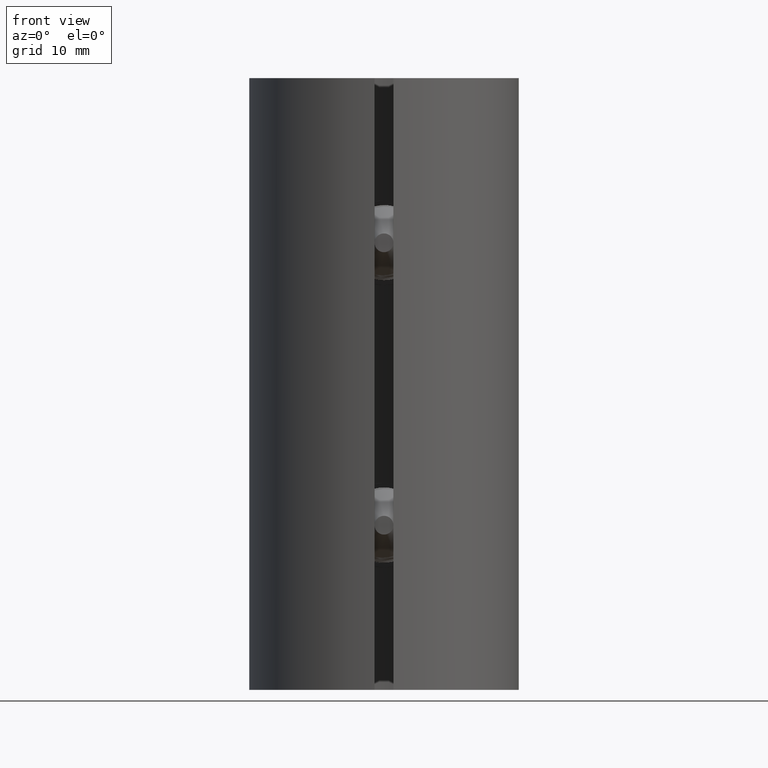
[diagram: clean part render]
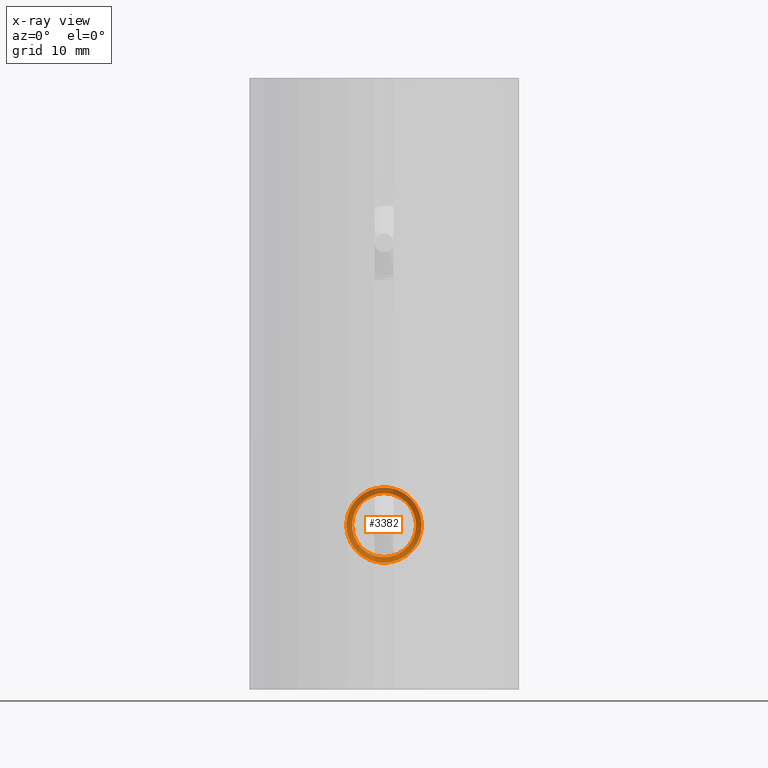
[diagram: x-ray — body ghosted, one internal face saturated and labeled with its STEP entity id]
A machine part, front view, then the same camera in x-ray: the body is ghosted and one INTERNAL B-rep face — a face not visible from any outside direction — is saturated and labeled: STEP entity #3382.
In plain terms, the highlighted face is a freeform B-spline surface patch.
Its self-contained STEP definition (entity closure, byte-faithful):
#34 = CARTESIAN_POINT ( 'NONE',  ( -4.163799117101001052E-16, 6.971521231503073679, -18.39999999999999858 ) ) ;
#52 = CARTESIAN_POINT ( 'NONE',  ( 0.000000000000000000, 12.25588457268119846, -11.01000000000000156 ) ) ;
#133 = CARTESIAN_POINT ( 'NONE',  ( 1.408326112068525537, 6.424646231503074567, -11.60000000000000320 ) ) ;
#185 = CARTESIAN_POINT ( 'NONE',  ( 3.989999999999998437, 13.74025957268119846, -13.34728788613134931 ) ) ;
#200 = CARTESIAN_POINT ( 'NONE',  ( -1.652712113868649135, 9.677759572681198463, -11.01000000000000156 ) ) ;
#233 = CARTESIAN_POINT ( 'NONE',  ( -4.886340728597938091E-16, 11.63088457268119846, -18.98999999999999844 ) ) ;
#251 = CARTESIAN_POINT ( 'NONE',  ( 3.989999999999998881, 10.06838457268119846, -15.00000000000000000 ) ) ;
#256 = CARTESIAN_POINT ( 'NONE',  ( -3.399999999999996803, 9.810062898169741530, -14.55494104074145056 ) ) ;
#266 = VERTEX_POINT ( 'NONE', #3257 ) ;
#282 = CARTESIAN_POINT ( 'NONE',  ( -2.821356056934324119, 9.287134572681200240, -17.82135605693432012 ) ) ;
#296 = CARTESIAN_POINT ( 'NONE',  ( 1.652712113868648247, 10.30275957268119846, -18.98999999999999488 ) ) ;
#301 = CARTESIAN_POINT ( 'NONE',  ( -2.970873720404472618, 9.679854564836405828, -16.71230453326105803 ) ) ;
#313 = CARTESIAN_POINT ( 'NONE',  ( -4.163799117101001052E-16, 15.72152123150307190, -18.39999999999999858 ) ) ;
#323 = CARTESIAN_POINT ( 'NONE',  ( -1.652712113868649357, 12.95900957268119846, -18.99000000000000199 ) ) ;
#326 = CARTESIAN_POINT ( 'NONE',  ( -2.089458847914708706, 12.46631289816973975, -12.28113273584619058 ) ) ;
#338 = CARTESIAN_POINT ( 'NONE',  ( -3.989999999999998881, 10.77150957268120202, -13.34728788613134753 ) ) ;
#366 = CARTESIAN_POINT ( 'NONE',  ( 1.652712113868648025, 12.80275957268119846, -18.99000000000000199 ) ) ;
#430 = ORIENTED_EDGE ( 'NONE', *, *, #6447, .T. ) ;
#434 = CARTESIAN_POINT ( 'NONE',  ( -4.163799117101001052E-16, 10.72152123150307368, -18.39999999999999858 ) ) ;
#457 = CARTESIAN_POINT ( 'NONE',  ( -1.712304533261055806, 12.49235456483640405, -12.02912627959552694 ) ) ;
#485 = CARTESIAN_POINT ( 'NONE',  ( 2.404163056034261281, 15.56527123150307190, -17.40416305603426039 ) ) ;
#502 = CARTESIAN_POINT ( 'NONE',  ( 3.989999999999998437, 6.240259572681199352, -13.34728788613134931 ) ) ;
#505 = CARTESIAN_POINT ( 'NONE',  ( -4.163799117101001052E-16, 11.97152123150307190, -18.39999999999999858 ) ) ;
#548 = CARTESIAN_POINT ( 'NONE',  ( 1.652712113868648025, 7.802759572681198463, -18.99000000000000199 ) ) ;
#583 = CARTESIAN_POINT ( 'NONE',  ( 3.400000000000000355, 12.90902123150307368, -15.00000000000000000 ) ) ;
#598 = CARTESIAN_POINT ( 'NONE',  ( 3.183833800899684707, 13.73925011489686909, -12.71205434782717880 ) ) ;
#626 = CARTESIAN_POINT ( 'NONE',  ( 2.404163056034261281, 11.81527123150307190, -17.40416305603426039 ) ) ;
#636 = CARTESIAN_POINT ( 'NONE',  ( 3.305975279310862547, 7.849999999999997868, -16.58564696313968057 ) ) ;
#675 = CARTESIAN_POINT ( 'NONE',  ( 3.399999999999999467, 14.23714623150307368, -16.40832611206852576 ) ) ;
#682 = CARTESIAN_POINT ( 'NONE',  ( 3.353613437643955475, 7.849999999999987210, -14.24409824698278015 ) ) ;
#721 = CARTESIAN_POINT ( 'NONE',  ( 3.400000000000000355, 14.08089623150307546, -13.59167388793147424 ) ) ;
#773 = CARTESIAN_POINT ( 'NONE',  ( 3.496167496408692177, 7.849999999999992539, -15.81237667459263108 ) ) ;
#825 = CARTESIAN_POINT ( 'NONE',  ( -0.3423931213509390781, 13.24168563824468947, -18.39999999999999503 ) ) ;
#842 = CARTESIAN_POINT ( 'NONE',  ( -1.408326112068523317, 8.768396231503073679, -11.60000000000000320 ) ) ;
#870 = CARTESIAN_POINT ( 'NONE',  ( 2.089458847914709150, 11.47672956483640228, -12.28113273584618881 ) ) ;
#887 = CARTESIAN_POINT ( 'NONE',  ( 3.399999999999999467, 9.237146231503073679, -16.40832611206852576 ) ) ;
#888 = CARTESIAN_POINT ( 'NONE',  ( 0.6324593618850307131, 7.850000002438537905, -18.93955519767955309 ) ) ;
#940 = CARTESIAN_POINT ( 'NONE',  ( 3.400000000000000355, 9.080896231503071903, -13.59167388793147424 ) ) ;
#963 = CARTESIAN_POINT ( 'NONE',  ( 1.408326112068522651, 9.393396231503071903, -18.39999999999999503 ) ) ;
#973 = CARTESIAN_POINT ( 'NONE',  ( -2.718867264153809860, 11.16422956483640405, -12.91054115208528863 ) ) ;
#1010 = CARTESIAN_POINT ( 'NONE',  ( -1.408326112068523761, 8.299646231503071903, -18.39999999999999503 ) ) ;
#1033 = CARTESIAN_POINT ( 'NONE',  ( -2.821356056934324119, 15.84963457268119846, -12.17864394306567455 ) ) ;
#1080 = CARTESIAN_POINT ( 'NONE',  ( -1.408326112068523761, 7.049646231503075455, -18.40000000000000213 ) ) ;
#1082 = CARTESIAN_POINT ( 'NONE',  ( -1.652712113868649357, 7.959009572681198463, -18.98999999999999488 ) ) ;
#1143 = CARTESIAN_POINT ( 'NONE',  ( 3.250916039945968894, 13.69085108113692861, -12.60820392607732110 ) ) ;
#1174 = CARTESIAN_POINT ( 'NONE',  ( -3.989999999999999325, 14.36525957268120024, -16.65271211386864891 ) ) ;
#1219 = CARTESIAN_POINT ( 'NONE',  ( 1.652712113868648025, 15.30275957268119846, -18.99000000000000199 ) ) ;
#1269 = CARTESIAN_POINT ( 'NONE',  ( -2.821356056934324119, 13.03713457268120024, -17.82135605693432012 ) ) ;
#1282 = CARTESIAN_POINT ( 'NONE',  ( 2.821356056934324563, 11.16213457268119846, -12.17864394306567632 ) ) ;
#1309 = CARTESIAN_POINT ( 'NONE',  ( 2.821356056934324563, 11.16213457268119846, -12.17864394306567632 ) ) ;
#1325 = CARTESIAN_POINT ( 'NONE',  ( -4.886340728597938091E-16, 9.130884572681200240, -18.98999999999999844 ) ) ;
#1354 = CARTESIAN_POINT ( 'NONE',  ( 1.652712113868648025, 9.052759572681200240, -18.99000000000000199 ) ) ;
#1374 = CARTESIAN_POINT ( 'NONE',  ( 1.712304533261057138, 10.20068789816973975, -12.02912627959552516 ) ) ;
#1397 = CARTESIAN_POINT ( 'NONE',  ( 3.989999999999998881, 13.81838457268119846, -15.00000000000000000 ) ) ;
#1415 = CARTESIAN_POINT ( 'NONE',  ( 3.989999999999998437, 11.39650957268120202, -16.65271211386865247 ) ) ;
#1430 = CARTESIAN_POINT ( 'NONE',  ( 3.400000000000000355, 15.40902123150307190, -15.00000000000000000 ) ) ;
#1442 = CARTESIAN_POINT ( 'NONE',  ( 3.989999999999998437, 10.14650957268120024, -16.65271211386864891 ) ) ;
#1461 = CARTESIAN_POINT ( 'NONE',  ( 3.989999999999998881, 8.818384572681200240, -15.00000000000000000 ) ) ;
#1475 = CARTESIAN_POINT ( 'NONE',  ( 0.000000000000000000, 16.34652123150307190, -11.59999999999999964 ) ) ;
#1490 = CARTESIAN_POINT ( 'NONE',  ( -2.821356056934324119, 7.099634572681198463, -12.17864394306567455 ) ) ;
#1494 = CARTESIAN_POINT ( 'NONE',  ( 2.089458847914709150, 12.72672956483640760, -12.28113273584618881 ) ) ;
#1509 = CARTESIAN_POINT ( 'NONE',  ( 2.718867264153809860, 10.53922956483640583, -17.08945884791471315 ) ) ;
#1583 = CARTESIAN_POINT ( 'NONE',  ( -4.886340728597938091E-16, 7.880884572681198463, -18.98999999999999844 ) ) ;
#1708 = CARTESIAN_POINT ( 'NONE',  ( 3.399999999999999467, 11.73714623150307723, -16.40832611206852576 ) ) ;
#1755 = CARTESIAN_POINT ( 'NONE',  ( -3.400000000000000799, 12.20589623150307190, -16.40832611206852221 ) ) ;
#1770 = CARTESIAN_POINT ( 'NONE',  ( 2.063393745355900144, 13.78051179386369185, -11.89467434520416944 ) ) ;
#1773 = CARTESIAN_POINT ( 'NONE',  ( 0.6324593618850307131, 7.850000002438537905, -18.93955519767955309 ) ) ;
#1805 = CARTESIAN_POINT ( 'NONE',  ( 2.456707997354747430, 7.850000000000014744, -17.91199843533408043 ) ) ;
#1811 = CARTESIAN_POINT ( 'NONE',  ( -3.580509199866794834, 13.38568197335586873, -13.79292406721545561 ) ) ;
#1858 = CARTESIAN_POINT ( 'NONE',  ( -1.183158464097065599, 13.69084243500503462, -11.63783477574895819 ) ) ;
#1910 = CARTESIAN_POINT ( 'NONE',  ( -2.917676082544817362, 13.50088328932882042, -12.74414609622461292 ) ) ;
#1956 = CARTESIAN_POINT ( 'NONE',  ( -2.970873720404472618, 10.92985456483640228, -16.71230453326105803 ) ) ;
#2007 = CARTESIAN_POINT ( 'NONE',  ( -3.399999999999995470, 11.00797956483640760, -15.44505895925855299 ) ) ;
#2024 = CARTESIAN_POINT ( 'NONE',  ( 3.400000000000000355, 10.33089623150307190, -13.59167388793147424 ) ) ;
#2058 = CARTESIAN_POINT ( 'NONE',  ( 3.311507100672269832, 11.60693789816974153, -14.11005719317844864 ) ) ;
#2110 = CARTESIAN_POINT ( 'NONE',  ( 2.089458847914708706, 11.84131289816973975, -17.71886726415380764 ) ) ;
#2124 = CARTESIAN_POINT ( 'NONE',  ( -4.886340728597938091E-16, 15.38088457268119846, -18.98999999999999844 ) ) ;
#2141 = CARTESIAN_POINT ( 'NONE',  ( -3.989999999999998881, 13.19338457268120024, -15.00000000000000000 ) ) ;
#2169 = CARTESIAN_POINT ( 'NONE',  ( 2.404163056034262169, 7.752771231503071903, -12.59583694396573783 ) ) ;
#2186 = CARTESIAN_POINT ( 'NONE',  ( 3.533171823949072365, 13.72180636727306968, -13.14614001001899268 ) ) ;
#2219 = CARTESIAN_POINT ( 'NONE',  ( -1.652712113868648691, 15.92775957268120202, -11.00999999999999979 ) ) ;
#2235 = CARTESIAN_POINT ( 'NONE',  ( 1.652712113868651356, 13.58400957268119846, -11.01000000000000156 ) ) ;
#2264 = ORIENTED_EDGE ( 'NONE', *, *, #3998, .F. ) ;
#2311 = CARTESIAN_POINT ( 'NONE',  ( -2.821356056934324119, 14.28713457268119846, -17.82135605693432012 ) ) ;
#2325 = CARTESIAN_POINT ( 'NONE',  ( 2.821356056934324563, 13.66213457268119846, -12.17864394306567632 ) ) ;
#2330 = B_SPLINE_CURVE_WITH_KNOTS ( 'NONE', 3,
 ( #434, #8021, #3564, #8940, #11300, #1509, #9025, #11167, #12224, #2603, #6820, #2507, #4655, #9072, #1374, #12270, #7882, #3694, #13301, #6730, #8981, #13388, #6779, #12178, #256, #3608, #7838, #301, #10071, #10161, #13345, #3653, #11250, #4746 ),
 .UNSPECIFIED., .F., .F.,
 ( 4, 2, 2, 2, 2, 2, 2, 2, 2, 2, 2, 2, 2, 2, 2, 2, 4 ),
 ( 0.000000000000000000, 0.06250000000000000000, 0.1250000000000000000, 0.1875000000000000000, 0.2500000000000000000, 0.3125000000000000000, 0.3750000000000000000, 0.4375000000000000000, 0.5000000000000000000, 0.5625000000000000000, 0.6250000000000000000, 0.6875000000000000000, 0.7500000000000000000, 0.8125000000000000000, 0.8750000000000000000, 0.9375000000000000000, 1.000000000000000000 ),
 .UNSPECIFIED. ) ;
#2355 = CARTESIAN_POINT ( 'NONE',  ( 3.989999999999998881, 10.06838457268119846, -15.00000000000000000 ) ) ;
#2371 = CARTESIAN_POINT ( 'NONE',  ( -3.989999999999998881, 9.365259572681198463, -16.65271211386864891 ) ) ;
#2402 = CARTESIAN_POINT ( 'NONE',  ( -3.989999999999998881, 13.19338457268120024, -15.00000000000000000 ) ) ;
#2416 = CARTESIAN_POINT ( 'NONE',  ( 2.821356056934324563, 8.662134572681200240, -12.17864394306567632 ) ) ;
#2444 = CARTESIAN_POINT ( 'NONE',  ( 3.989999999999998881, 11.31838457268119846, -15.00000000000000000 ) ) ;
#2475 = CARTESIAN_POINT ( 'NONE',  ( -3.400000000000000799, 16.11214623150307546, -13.59167388793147424 ) ) ;
#2485 = CARTESIAN_POINT ( 'NONE',  ( -3.989999999999999325, 11.86525957268119846, -16.65271211386864891 ) ) ;
#2489 = CARTESIAN_POINT ( 'NONE',  ( 2.970873720404473950, 13.01318789816974153, -16.71230453326105803 ) ) ;
#2503 = CARTESIAN_POINT ( 'NONE',  ( -3.989999999999998881, 11.94338457268119846, -15.00000000000000000 ) ) ;
#2507 = CARTESIAN_POINT ( 'NONE',  ( 2.970873720404473950, 10.30485456483640760, -13.28769546673894730 ) ) ;
#2530 =( BOUNDED_CURVE ( )  B_SPLINE_CURVE ( 2, ( #2186, #1143, #2325, #2235, #9930, #12975, #6436, #3276, #2141, #4417, #3225, #9740, #10839, #4322, #11928, #13022, #4369, #13068, #11984, #6531, #52, #8754, #9836, #3330, #2503, #11205, #6868, #8934, #8887, #13211, #6773, #1415, #12173, #7787, #1282, #7968, #12310, #5732, #9981, #338, #7833, #8978, #3472, #7920, #10157, #296, #3604, #4695, #251, #3559, #7878, #4511, #6816, #200, #3650, #11162, #4651, #2371, #5778, #12266, #1325, #2547, #12219, #13342, #1461, #9067, #2416, #10024, #4602, #12125, #2740, #13631, #4739, #12707, #13819, #1082, #7586, #12907, #888 ),
 .UNSPECIFIED., .F., .T. ) 
 B_SPLINE_CURVE_WITH_KNOTS ( ( 3, 2, 2, 2, 2, 2, 2, 2, 2, 2, 2, 2, 2, 2, 2, 2, 2, 2, 2, 2, 2, 2, 2, 2, 2, 2, 2, 2, 2, 2, 2, 2, 2, 2, 2, 2, 2, 2, 2, 3 ),
 ( 0.2283412278874050738, 0.2343750000000008882, 0.2500000000000008327, 0.2656250000000008327, 0.2812500000000007772, 0.2968750000000007772, 0.3125000000000007772, 0.3281250000000007216, 0.3437500000000007216, 0.3593750000000006661, 0.3750000000000006661, 0.3906250000000006661, 0.4062500000000006106, 0.4218750000000006106, 0.4375000000000005551, 0.4531250000000005551, 0.4687500000000005551, 0.4843750000000004996, 0.5000000000000004441, 0.5156250000000004441, 0.5312500000000004441, 0.5468750000000004441, 0.5625000000000004441, 0.5781250000000004441, 0.5937500000000003331, 0.6093750000000003331, 0.6250000000000002220, 0.6406250000000002220, 0.6562500000000002220, 0.6718750000000002220, 0.6875000000000002220, 0.7031250000000002220, 0.7187500000000002220, 0.7343750000000001110, 0.7500000000000001110, 0.7656250000000001110, 0.7812500000000001110, 0.7968750000000000000, 0.8125000000000000000, 0.8157057384092217811 ),
 .UNSPECIFIED. ) 
 CURVE ( )  GEOMETRIC_REPRESENTATION_ITEM ( )  RATIONAL_B_SPLINE_CURVE ( ( 0.9639126905407942036, 0.9706052125484061488, 1.000000000000000000, 0.9238795325112867385, 1.000000000000000000, 0.9238795325112867385, 1.000000000000000000, 0.9238795325112867385, 1.000000000000000000, 0.9238795325112867385, 1.000000000000000000, 0.9238795325112867385, 1.000000000000000000, 0.9238795325112867385, 1.000000000000000000, 0.9238795325112867385, 1.000000000000000000, 0.9238795325112867385, 1.000000000000000000, 0.9238795325112867385, 1.000000000000000000, 0.9238795325112867385, 1.000000000000000000, 0.9238795325112867385, 1.000000000000000000, 0.9238795325112867385, 1.000000000000000000, 0.9238795325112867385, 1.000000000000000000, 0.9238795325112867385, 1.000000000000000000, 0.9238795325112867385, 1.000000000000000000, 0.9238795325112867385, 1.000000000000000000, 0.9238795325112867385, 1.000000000000000000, 0.9238795325112867385, 1.000000000000000000, 0.9238795325112867385, 1.000000000000000000, 0.9238795325112867385, 1.000000000000000000, 0.9238795325112867385, 1.000000000000000000, 0.9238795325112867385, 1.000000000000000000, 0.9238795325112867385, 1.000000000000000000, 0.9238795325112867385, 1.000000000000000000, 0.9238795325112867385, 1.000000000000000000, 0.9238795325112867385, 1.000000000000000000, 0.9238795325112867385, 1.000000000000000000, 0.9238795325112867385, 1.000000000000000000, 0.9238795325112867385, 1.000000000000000000, 0.9238795325112867385, 1.000000000000000000, 0.9238795325112867385, 1.000000000000000000, 0.9238795325112867385, 1.000000000000000000, 0.9238795325112867385, 1.000000000000000000, 0.9238795325112867385, 1.000000000000000000, 0.9238795325112867385, 1.000000000000000000, 0.9238795325112867385, 1.000000000000000000, 0.9238795325112867385, 1.000000000000000000, 0.9843825723931849403, 0.9751735143905180259 ) ) 
 REPRESENTATION_ITEM ( '' )  );
#2531 = CARTESIAN_POINT ( 'NONE',  ( 3.989999999999998437, 9.990259572681198463, -13.34728788613134931 ) ) ;
#2547 = CARTESIAN_POINT ( 'NONE',  ( 1.652712113868648247, 9.052759572681196687, -18.98999999999999488 ) ) ;
#2603 = CARTESIAN_POINT ( 'NONE',  ( 3.399999999999996803, 10.38297956483640938, -14.55494104074144879 ) ) ;
#2615 = CARTESIAN_POINT ( 'NONE',  ( -1.408326112068523761, 15.79964623150307368, -18.40000000000000213 ) ) ;
#2634 = CARTESIAN_POINT ( 'NONE',  ( -3.989999999999999325, 8.271509572681198463, -13.34728788613134931 ) ) ;
#2670 = B_SPLINE_CURVE_WITH_KNOTS ( 'NONE', 3,
 ( #8673, #12990, #6409, #4141, #2110, #8531, #4338, #5338, #12940, #7371, #2058, #5230, #4188, #870, #10811, #4287, #5182, #9657, #11852, #13899, #3240, #973, #12842, #6449, #4238, #2007, #9611, #1956, #14055, #7522, #14102, #13951, #10712, #11896 ),
 .UNSPECIFIED., .F., .F.,
 ( 4, 2, 2, 2, 2, 2, 2, 2, 2, 2, 2, 2, 2, 2, 2, 2, 4 ),
 ( 0.000000000000000000, 0.06250000000000000000, 0.1250000000000000000, 0.1875000000000000000, 0.2500000000000000000, 0.3125000000000000000, 0.3750000000000000000, 0.4375000000000000000, 0.5000000000000000000, 0.5625000000000000000, 0.6250000000000000000, 0.6875000000000000000, 0.7500000000000000000, 0.8125000000000000000, 0.8750000000000000000, 0.9375000000000000000, 1.000000000000000000 ),
 .UNSPECIFIED. ) ;
#2679 = CARTESIAN_POINT ( 'NONE',  ( -4.163799117101001052E-16, 9.471521231503073679, -18.39999999999999858 ) ) ;
#2682 = CARTESIAN_POINT ( 'NONE',  ( -3.311507100672269388, 12.23193789816973975, -15.88994280682155136 ) ) ;
#2705 = CARTESIAN_POINT ( 'NONE',  ( 2.404163056034261281, 14.31527123150307368, -17.40416305603426039 ) ) ;
#2721 = CARTESIAN_POINT ( 'NONE',  ( 1.811111364320753037, 13.78478740792649582, -11.77902343907209826 ) ) ;
#2723 = CARTESIAN_POINT ( 'NONE',  ( 0.000000000000000000, 7.255884572681198463, -11.01000000000000156 ) ) ;
#2740 = CARTESIAN_POINT ( 'NONE',  ( -2.821356056934324119, 8.349634572681198463, -12.17864394306567455 ) ) ;
#2755 = CARTESIAN_POINT ( 'NONE',  ( -4.163799117101001052E-16, 14.47152123150307368, -18.39999999999999858 ) ) ;
#2798 = CARTESIAN_POINT ( 'NONE',  ( 0.000000000000000000, 11.34652123150307190, -11.59999999999999964 ) ) ;
#2843 = CARTESIAN_POINT ( 'NONE',  ( 1.408326112068522651, 13.14339623150307190, -18.40000000000000213 ) ) ;
#2855 = CARTESIAN_POINT ( 'NONE',  ( -1.931621314492935726, 13.34250790666282782, -17.79800627186512685 ) ) ;
#2887 = CARTESIAN_POINT ( 'NONE',  ( 1.408326112068525537, 11.42464623150307368, -11.60000000000000320 ) ) ;
#2898 = CARTESIAN_POINT ( 'NONE',  ( -0.3738163923416742973, 13.74317221047494897, -11.46453510672782983 ) ) ;
#2944 = CARTESIAN_POINT ( 'NONE',  ( -1.448869944163767576, 13.66877264272537040, -11.73245465313637403 ) ) ;
#3055 = CARTESIAN_POINT ( 'NONE',  ( 3.399999999999999467, 10.48714623150307546, -16.40832611206852576 ) ) ;
#3106 = CARTESIAN_POINT ( 'NONE',  ( 2.404163056034262169, 10.25277123150307190, -12.59583694396573783 ) ) ;
#3132 = CARTESIAN_POINT ( 'NONE',  ( -2.404163056034261725, 8.377771231503071903, -17.40416305603426039 ) ) ;
#3206 = CARTESIAN_POINT ( 'NONE',  ( 1.652712113868651356, 14.83400957268120024, -11.01000000000000156 ) ) ;
#3225 = CARTESIAN_POINT ( 'NONE',  ( -2.821356056934324119, 13.03713457268120024, -17.82135605693432012 ) ) ;
#3232 = CARTESIAN_POINT ( 'NONE',  ( 0.000000000000000000, 8.846521231503073679, -11.59999999999999964 ) ) ;
#3240 = CARTESIAN_POINT ( 'NONE',  ( -2.089458847914708706, 11.21631289816973975, -12.28113273584619058 ) ) ;
#3257 = CARTESIAN_POINT ( 'NONE',  ( -4.163799117101001052E-16, 10.72152123150307368, -18.39999999999999858 ) ) ;
#3259 = CARTESIAN_POINT ( 'NONE',  ( -4.886340728597938091E-16, 14.13088457268119846, -18.98999999999999844 ) ) ;
#3276 = CARTESIAN_POINT ( 'NONE',  ( -3.989999999999998881, 13.27150957268120024, -13.34728788613134753 ) ) ;
#3312 = CARTESIAN_POINT ( 'NONE',  ( -3.400000000000000799, 7.205896231503073679, -16.40832611206852221 ) ) ;
#3330 = CARTESIAN_POINT ( 'NONE',  ( -3.989999999999998881, 12.02150957268120024, -13.34728788613134753 ) ) ;
#3363 = CARTESIAN_POINT ( 'NONE',  ( -3.989999999999999325, 14.52150957268120202, -13.34728788613134931 ) ) ;
#3382 = ADVANCED_FACE ( 'NONE', ( #12966 ), #7773, .T. ) ;
#3414 = CARTESIAN_POINT ( 'NONE',  ( -1.408326112068523761, 8.299646231503073679, -18.40000000000000213 ) ) ;
#3456 = CARTESIAN_POINT ( 'NONE',  ( -1.652712113868648691, 13.42775957268119846, -11.00999999999999979 ) ) ;
#3468 = ORIENTED_EDGE ( 'NONE', *, *, #4928, .F. ) ;
#3472 = CARTESIAN_POINT ( 'NONE',  ( -2.821356056934324119, 10.53713457268119846, -17.82135605693432012 ) ) ;
#3502 = CARTESIAN_POINT ( 'NONE',  ( -2.821356056934324119, 10.84963457268119846, -12.17864394306567455 ) ) ;
#3520 = B_SPLINE_CURVE_WITH_KNOTS ( 'NONE', 3,
 ( #8321, #682, #12597, #11634, #7266, #773, #10459, #636, #8415, #13842, #10598, #1805, #10413, #7176, #8231, #4075, #11686, #8275 ),
 .UNSPECIFIED., .F., .F.,
 ( 4, 2, 2, 2, 2, 2, 2, 2, 4 ),
 ( 0.000000000000000000, 0.0007892321365162787046, 0.001578464273032557409, 0.002367696409548836114, 0.003156928546065114818, 0.003946160682581393957, 0.004735392819097672228, 0.005524624955613952233, 0.006313857092130232239 ),
 .UNSPECIFIED. ) ;
#3544 = CARTESIAN_POINT ( 'NONE',  ( 2.821356056934323675, 8.974634572681200240, -17.82135605693432368 ) ) ;
#3547 = CARTESIAN_POINT ( 'NONE',  ( 3.311507100672270276, 12.96110456483640583, -15.88994280682155491 ) ) ;
#3559 = CARTESIAN_POINT ( 'NONE',  ( 3.989999999999998437, 9.990259572681198463, -13.34728788613134753 ) ) ;
#3564 = CARTESIAN_POINT ( 'NONE',  ( 0.8899428068215522458, 10.66943789816974153, -18.31150710067226939 ) ) ;
#3587 = CARTESIAN_POINT ( 'NONE',  ( -3.989999999999999325, 12.02150957268120202, -13.34728788613134931 ) ) ;
#3590 = CARTESIAN_POINT ( 'NONE',  ( 0.8899428068215522458, 12.64860456483640583, -11.68849289932772706 ) ) ;
#3604 = CARTESIAN_POINT ( 'NONE',  ( 2.821356056934323675, 10.22463457268119846, -17.82135605693432368 ) ) ;
#3608 = CARTESIAN_POINT ( 'NONE',  ( -3.399999999999995470, 9.757979564836405828, -15.44505895925855299 ) ) ;
#3631 = CARTESIAN_POINT ( 'NONE',  ( 0.000000000000000000, 9.755884572681198463, -11.01000000000000156 ) ) ;
#3650 = CARTESIAN_POINT ( 'NONE',  ( -2.821356056934324119, 9.599634572681198463, -12.17864394306567455 ) ) ;
#3653 = CARTESIAN_POINT ( 'NONE',  ( -0.8899428068215538001, 9.523604564836405828, -18.31150710067226228 ) ) ;
#3674 = CARTESIAN_POINT ( 'NONE',  ( 3.989999999999998881, 8.818384572681200240, -15.00000000000000000 ) ) ;
#3694 = CARTESIAN_POINT ( 'NONE',  ( -0.4450589592585531551, 10.07047956483640760, -11.60000000000000142 ) ) ;
#3704 = CARTESIAN_POINT ( 'NONE',  ( -3.400000000000000799, 14.86214623150307368, -13.59167388793147424 ) ) ;
#3721 = CARTESIAN_POINT ( 'NONE',  ( -3.989999999999999325, 8.115259572681198463, -16.65271211386864891 ) ) ;
#3723 = CARTESIAN_POINT ( 'NONE',  ( -2.970873720404473062, 12.38818789816973798, -13.28769546673894375 ) ) ;
#3738 = CARTESIAN_POINT ( 'NONE',  ( 3.249162152950608284, 7.849999997779643301, -13.99852843084120835 ) ) ;
#3762 = CARTESIAN_POINT ( 'NONE',  ( -4.886340728597938091E-16, 6.630884572681199352, -18.98999999999999844 ) ) ;
#3790 = VERTEX_POINT ( 'NONE', #10508 ) ;
#3799 = ORIENTED_EDGE ( 'NONE', *, *, #5192, .F. ) ;
#3805 = CARTESIAN_POINT ( 'NONE',  ( 3.369847059114895682, 13.72983827748841890, -12.91765705228256778 ) ) ;
#3808 = CARTESIAN_POINT ( 'NONE',  ( 3.989999999999998437, 8.896509572681198463, -16.65271211386864891 ) ) ;
#3837 = CARTESIAN_POINT ( 'NONE',  ( -2.404163056034261725, 12.12777123150307190, -17.40416305603426039 ) ) ;
#3854 = CARTESIAN_POINT ( 'NONE',  ( -3.989999999999998881, 8.193384572681198463, -15.00000000000000000 ) ) ;
#3879 = CARTESIAN_POINT ( 'NONE',  ( -4.163799117101001052E-16, 10.72152123150307368, -18.39999999999999858 ) ) ;
#3929 = CARTESIAN_POINT ( 'NONE',  ( -1.408326112068523761, 13.29964623150307190, -18.40000000000000213 ) ) ;
#3940 = CARTESIAN_POINT ( 'NONE',  ( -0.6847389106657342239, 13.26185004498630349, -18.34788973441012416 ) ) ;
#3973 = CARTESIAN_POINT ( 'NONE',  ( -3.400000000000000799, 11.11214623150307723, -13.59167388793147424 ) ) ;
#3984 = CARTESIAN_POINT ( 'NONE',  ( -2.834980348370273351, 13.32323332404021876, -17.13977303512800887 ) ) ;
#3998 = EDGE_CURVE ( 'NONE', #11964, #266, #2670, .T. ) ;
#4033 = CARTESIAN_POINT ( 'NONE',  ( -2.179706419305309506, 13.34036036669686354, -17.66576717602980295 ) ) ;
#4075 = CARTESIAN_POINT ( 'NONE',  ( 1.142715053364263156, 7.849999999999997868, -18.78338528711112332 ) ) ;
#4102 = CARTESIAN_POINT ( 'NONE',  ( -2.404163056034261725, 9.627771231503073679, -17.40416305603426039 ) ) ;
#4128 = CARTESIAN_POINT ( 'NONE',  ( 3.400000000000000355, 9.080896231503071903, -13.59167388793147602 ) ) ;
#4141 = CARTESIAN_POINT ( 'NONE',  ( 1.712304533261055806, 11.86735456483640405, -17.97087372040447306 ) ) ;
#4157 = CARTESIAN_POINT ( 'NONE',  ( 3.400000000000000355, 9.159021231503073679, -15.00000000000000000 ) ) ;
#4188 = CARTESIAN_POINT ( 'NONE',  ( 2.718867264153809415, 11.52881289816973975, -12.91054115208528863 ) ) ;
#4204 = CARTESIAN_POINT ( 'NONE',  ( -3.400000000000000799, 8.455896231503073679, -16.40832611206852221 ) ) ;
#4238 = CARTESIAN_POINT ( 'NONE',  ( -3.399999999999996803, 11.06006289816974153, -14.55494104074145056 ) ) ;
#4253 = CARTESIAN_POINT ( 'NONE',  ( 3.400000000000000355, 10.40902123150307368, -15.00000000000000000 ) ) ;
#4277 = CARTESIAN_POINT ( 'NONE',  ( 3.399999999999999467, 9.237146231503071903, -16.40832611206852576 ) ) ;
#4287 = CARTESIAN_POINT ( 'NONE',  ( 0.8899428068215522458, 11.39860456483640583, -11.68849289932772706 ) ) ;
#4322 = CARTESIAN_POINT ( 'NONE',  ( 1.652712113868648247, 12.80275957268119846, -18.98999999999999488 ) ) ;
#4338 = CARTESIAN_POINT ( 'NONE',  ( 2.970873720404473950, 11.76318789816973798, -16.71230453326105803 ) ) ;
#4352 = CARTESIAN_POINT ( 'NONE',  ( 3.400000000000000355, 6.580896231503072791, -13.59167388793147424 ) ) ;
#4369 = CARTESIAN_POINT ( 'NONE',  ( 3.989999999999998881, 12.56838457268120024, -15.00000000000000000 ) ) ;
#4402 = CARTESIAN_POINT ( 'NONE',  ( -1.652712113868648691, 14.67775957268120024, -11.00999999999999979 ) ) ;
#4417 = CARTESIAN_POINT ( 'NONE',  ( -3.989999999999998881, 13.11525957268119669, -16.65271211386864891 ) ) ;
#4449 = CARTESIAN_POINT ( 'NONE',  ( 1.652712113868648025, 14.05275957268120024, -18.99000000000000199 ) ) ;
#4497 = CARTESIAN_POINT ( 'NONE',  ( -1.652712113868649357, 14.20900957268119846, -18.99000000000000199 ) ) ;
#4511 = CARTESIAN_POINT ( 'NONE',  ( 1.652712113868651356, 9.834009572681198463, -11.01000000000000156 ) ) ;
#4539 = CARTESIAN_POINT ( 'NONE',  ( 3.989999999999998437, 12.49025957268120024, -13.34728788613134931 ) ) ;
#4583 = CARTESIAN_POINT ( 'NONE',  ( 3.989999999999998437, 12.64650957268120202, -16.65271211386864891 ) ) ;
#4602 = CARTESIAN_POINT ( 'NONE',  ( 0.000000000000000000, 8.505884572681200240, -11.01000000000000156 ) ) ;
#4631 = CARTESIAN_POINT ( 'NONE',  ( 0.000000000000000000, 11.00588457268119846, -11.01000000000000156 ) ) ;
#4651 = CARTESIAN_POINT ( 'NONE',  ( -3.989999999999998881, 9.443384572681200240, -15.00000000000000000 ) ) ;
#4655 = CARTESIAN_POINT ( 'NONE',  ( 2.718867264153809415, 10.27881289816974331, -12.91054115208528863 ) ) ;
#4678 = CARTESIAN_POINT ( 'NONE',  ( -2.821356056934324119, 11.78713457268119846, -17.82135605693432012 ) ) ;
#4683 = CARTESIAN_POINT ( 'NONE',  ( 1.712304533261057138, 12.70068789816973798, -12.02912627959552516 ) ) ;
#4695 = CARTESIAN_POINT ( 'NONE',  ( 3.989999999999998437, 10.14650957268120024, -16.65271211386865247 ) ) ;
#4721 = CARTESIAN_POINT ( 'NONE',  ( -3.989999999999999325, 9.521509572681198463, -13.34728788613134931 ) ) ;
#4739 = CARTESIAN_POINT ( 'NONE',  ( -3.989999999999998881, 8.193384572681198463, -15.00000000000000000 ) ) ;
#4746 = CARTESIAN_POINT ( 'NONE',  ( -4.163799117101001052E-16, 9.471521231503073679, -18.39999999999999858 ) ) ;
#4756 = CARTESIAN_POINT ( 'NONE',  ( 1.408326112068522651, 15.64339623150307368, -18.40000000000000213 ) ) ;
#4772 = CARTESIAN_POINT ( 'NONE',  ( -1.652712113868648691, 8.427759572681198463, -11.00999999999999979 ) ) ;
#4776 = CARTESIAN_POINT ( 'NONE',  ( -2.718867264153809860, 12.41422956483640405, -12.91054115208528863 ) ) ;
#4801 = CARTESIAN_POINT ( 'NONE',  ( -3.400000000000000355, 14.78402123150307368, -15.00000000000000000 ) ) ;
#4822 = CARTESIAN_POINT ( 'NONE',  ( 2.821356056934323675, 6.474634572681199352, -17.82135605693432368 ) ) ;
#4832 = EDGE_CURVE ( 'NONE', #3790, #8218, #5125, .T. ) ;
#4861 = B_SPLINE_CURVE_WITH_KNOTS ( 'NONE', 3,
 ( #7940, #11262, #11135, #5836, #13446, #6930, #5880, #8952, #6023, #8270 ),
 .UNSPECIFIED., .F., .F.,
 ( 4, 2, 2, 2, 4 ),
 ( 0.000000000000000000, 0.2500000000000000000, 0.5000000000000000000, 0.7500000000000000000, 1.000000000000000000 ),
 .UNSPECIFIED. ) ;
#4907 = CARTESIAN_POINT ( 'NONE',  ( 0.1824137777880731337, 13.76632853550388980, -11.43785302336804222 ) ) ;
#4910 = CARTESIAN_POINT ( 'NONE',  ( 2.821356056934324563, 6.162134572681199352, -12.17864394306567632 ) ) ;
#4928 = EDGE_CURVE ( 'NONE', #8218, #13474, #13506, .T. ) ;
#4942 = CARTESIAN_POINT ( 'NONE',  ( 1.408326112068525537, 13.92464623150307190, -11.60000000000000320 ) ) ;
#4987 = CARTESIAN_POINT ( 'NONE',  ( 1.408326112068522651, 10.64339623150307368, -18.40000000000000213 ) ) ;
#5073 = CARTESIAN_POINT ( 'NONE',  ( -2.404163056034261725, 10.87777123150307190, -17.40416305603426039 ) ) ;
#5088 = CARTESIAN_POINT ( 'NONE',  ( -3.742925416233362945, 13.30536075910939431, -15.43421955272687462 ) ) ;
#5125 = B_SPLINE_CURVE_WITH_KNOTS ( 'NONE', 3,
 ( #13709, #3805, #598, #5941, #9228, #1770, #2721, #11412, #8188, #9190, #4907, #2898, #12789, #1858, #2944, #6258, #10656, #7228, #13797, #6209, #1910, #13749, #6311, #1811, #8471, #9561, #8368, #10556, #9463, #5088, #12839, #10506, #12738, #12689, #3984, #9513, #4033, #2855 ),
 .UNSPECIFIED., .F., .F.,
 ( 4, 2, 2, 2, 2, 2, 2, 2, 2, 2, 2, 2, 2, 2, 2, 2, 2, 2, 4 ),
 ( 0.000000000000000000, 0.0008311012082474618064, 0.001662202416494923613, 0.002493303624742385094, 0.003324404832989847226, 0.004155506041237309357, 0.004986607249484770188, 0.005817708457732232753, 0.006648809665979694451, 0.007064360270103427035, 0.007479910874227159619, 0.008311012082474627388, 0.009142113290722096025, 0.009557663894845832078, 0.009973214498969568131, 0.01080431570721703503, 0.01163541691546450367, 0.01246651812371197057, 0.01329761933195943921 ),
 .UNSPECIFIED. ) ;
#5134 = VERTEX_POINT ( 'NONE', #6832 ) ;
#5151 = CARTESIAN_POINT ( 'NONE',  ( -2.404163056034261725, 9.940271231503071903, -12.59583694396573783 ) ) ;
#5182 = CARTESIAN_POINT ( 'NONE',  ( 0.4450589592585540988, 11.37256289816973975, -11.60000000000000320 ) ) ;
#5192 = EDGE_CURVE ( 'NONE', #5134, #12822, #4861, .T. ) ;
#5230 = CARTESIAN_POINT ( 'NONE',  ( 2.970873720404473950, 11.55485456483640760, -13.28769546673894730 ) ) ;
#5248 = CARTESIAN_POINT ( 'NONE',  ( -3.400000000000000799, 8.612146231503071903, -13.59167388793147424 ) ) ;
#5338 = CARTESIAN_POINT ( 'NONE',  ( 3.311507100672270276, 11.71110456483640583, -15.88994280682155491 ) ) ;
#5352 = CARTESIAN_POINT ( 'NONE',  ( -4.163799117101001052E-16, 9.471521231503073679, -18.39999999999999858 ) ) ;
#5397 = CARTESIAN_POINT ( 'NONE',  ( -3.400000000000000799, 7.362146231503072791, -13.59167388793147424 ) ) ;
#5449 = CARTESIAN_POINT ( 'NONE',  ( 2.404163056034261281, 6.815271231503072791, -17.40416305603426039 ) ) ;
#5496 = CARTESIAN_POINT ( 'NONE',  ( 0.000000000000000000, 14.75588457268120024, -11.01000000000000156 ) ) ;
#5546 = CARTESIAN_POINT ( 'NONE',  ( 1.408326112068522651, 8.143396231503071903, -18.40000000000000213 ) ) ;
#5589 = CARTESIAN_POINT ( 'NONE',  ( 2.821356056934323675, 13.97463457268119846, -17.82135605693432368 ) ) ;
#5600 = CARTESIAN_POINT ( 'NONE',  ( -1.931621314492935726, 13.34250790666282782, -17.79800627186512685 ) ) ;
#5628 = CARTESIAN_POINT ( 'NONE',  ( -3.989999999999998881, 10.69338457268119846, -15.00000000000000000 ) ) ;
#5672 = CARTESIAN_POINT ( 'NONE',  ( -1.652712113868649357, 10.45900957268120024, -18.99000000000000199 ) ) ;
#5716 = CARTESIAN_POINT ( 'NONE',  ( 1.652712113868651356, 12.33400957268120024, -11.01000000000000156 ) ) ;
#5721 = CARTESIAN_POINT ( 'NONE',  ( 3.311507100672269832, 12.85693789816974153, -14.11005719317844864 ) ) ;
#5732 = CARTESIAN_POINT ( 'NONE',  ( -1.652712113868649135, 10.92775957268120024, -11.01000000000000156 ) ) ;
#5747 = CARTESIAN_POINT ( 'NONE',  ( -2.404163056034261725, 15.87777123150307190, -17.40416305603426039 ) ) ;
#5760 = CARTESIAN_POINT ( 'NONE',  ( 3.989999999999998437, 11.24025957268120024, -13.34728788613134931 ) ) ;
#5778 = CARTESIAN_POINT ( 'NONE',  ( -2.821356056934324119, 9.287134572681200240, -17.82135605693432012 ) ) ;
#5782 = CARTESIAN_POINT ( 'NONE',  ( -4.163799117101001052E-16, 11.97152123150307190, -18.39999999999999858 ) ) ;
#5805 = CARTESIAN_POINT ( 'NONE',  ( 3.989999999999998881, 7.568384572681198463, -15.00000000000000000 ) ) ;
#5836 = CARTESIAN_POINT ( 'NONE',  ( 2.005003117251071387, 8.097680821002045448, -17.79653718558470032 ) ) ;
#5850 = CARTESIAN_POINT ( 'NONE',  ( -3.989999999999998881, 6.943384572681199352, -15.00000000000000000 ) ) ;
#5853 = CARTESIAN_POINT ( 'NONE',  ( 2.718867264153809860, 13.03922956483640583, -17.08945884791471315 ) ) ;
#5880 = CARTESIAN_POINT ( 'NONE',  ( 3.263045988279873910, 7.973840410501021658, -16.09233173025191022 ) ) ;
#5896 = CARTESIAN_POINT ( 'NONE',  ( 0.000000000000000000, 6.005884572681198463, -11.01000000000000156 ) ) ;
#5941 = CARTESIAN_POINT ( 'NONE',  ( 2.771711966519600612, 13.75782317475271554, -12.34115940446654136 ) ) ;
#5943 = CARTESIAN_POINT ( 'NONE',  ( 0.000000000000000000, 8.505884572681200240, -11.01000000000000156 ) ) ;
#5971 = CARTESIAN_POINT ( 'NONE',  ( 3.399999999999999467, 12.98714623150307546, -16.40832611206852576 ) ) ;
#5989 = CARTESIAN_POINT ( 'NONE',  ( 1.652712113868651356, 6.084009572681199352, -11.01000000000000156 ) ) ;
#6022 = CARTESIAN_POINT ( 'NONE',  ( -4.163799117101001052E-16, 11.97152123150307190, -18.39999999999999858 ) ) ;
#6023 = CARTESIAN_POINT ( 'NONE',  ( 3.405206567140541818, 7.880960102625254926, -14.50479704600292585 ) ) ;
#6065 = CARTESIAN_POINT ( 'NONE',  ( 2.404163056034261281, 10.56527123150307368, -17.40416305603426039 ) ) ;
#6078 = CARTESIAN_POINT ( 'NONE',  ( -1.649847765876834460, 13.32234326521115086, -17.99252993284605395 ) ) ;
#6111 = CARTESIAN_POINT ( 'NONE',  ( 2.404163056034261281, 13.06527123150307368, -17.40416305603426039 ) ) ;
#6165 = CARTESIAN_POINT ( 'NONE',  ( -1.338511421313281824, 13.30217885846953330, -18.14414061780994558 ) ) ;
#6209 = CARTESIAN_POINT ( 'NONE',  ( -2.823250186732582989, 13.51450934246841129, -12.64399723926536367 ) ) ;
#6258 = CARTESIAN_POINT ( 'NONE',  ( -1.948040759091082652, 13.62104469537652740, -11.96939875953985499 ) ) ;
#6277 = CARTESIAN_POINT ( 'NONE',  ( -1.408326112068523761, 9.549646231503071903, -18.40000000000000213 ) ) ;
#6311 = CARTESIAN_POINT ( 'NONE',  ( -3.335451812968721619, 13.43387579565740175, -13.29134565867704154 ) ) ;
#6334 = CARTESIAN_POINT ( 'NONE',  ( 0.4450589592585537657, 13.19547956483640228, -18.39999999999999503 ) ) ;
#6409 = CARTESIAN_POINT ( 'NONE',  ( 0.8899428068215522458, 11.91943789816973975, -18.31150710067226939 ) ) ;
#6436 = CARTESIAN_POINT ( 'NONE',  ( -2.821356056934324119, 13.34963457268119846, -12.17864394306567455 ) ) ;
#6447 = EDGE_CURVE ( 'NONE', #3790, #7201, #2530, .T. ) ;
#6449 = CARTESIAN_POINT ( 'NONE',  ( -3.311507100672268944, 11.08610456483640405, -14.11005719317844687 ) ) ;
#6465 = CARTESIAN_POINT ( 'NONE',  ( 0.000000000000000000, 7.596521231503071903, -11.59999999999999964 ) ) ;
#6512 = CARTESIAN_POINT ( 'NONE',  ( 3.400000000000000355, 7.830896231503071903, -13.59167388793147424 ) ) ;
#6531 = CARTESIAN_POINT ( 'NONE',  ( 1.652712113868651356, 12.33400957268119846, -11.01000000000000156 ) ) ;
#6560 = CARTESIAN_POINT ( 'NONE',  ( 0.000000000000000000, 16.00588457268120024, -11.01000000000000156 ) ) ;
#6609 = CARTESIAN_POINT ( 'NONE',  ( 2.404163056034261281, 8.065271231503071903, -17.40416305603426039 ) ) ;
#6658 = CARTESIAN_POINT ( 'NONE',  ( 2.821356056934324563, 12.41213457268120024, -12.17864394306567632 ) ) ;
#6709 = CARTESIAN_POINT ( 'NONE',  ( 2.821356056934323675, 12.72463457268120024, -17.82135605693432368 ) ) ;
#6730 = CARTESIAN_POINT ( 'NONE',  ( -1.712304533261055806, 9.992354564836407604, -12.02912627959552694 ) ) ;
#6756 = CARTESIAN_POINT ( 'NONE',  ( -3.989999999999999325, 9.365259572681198463, -16.65271211386864891 ) ) ;
#6773 = CARTESIAN_POINT ( 'NONE',  ( 2.821356056934323675, 11.47463457268119846, -17.82135605693432368 ) ) ;
#6779 = CARTESIAN_POINT ( 'NONE',  ( -2.970873720404473062, 9.888187898169741530, -13.28769546673894375 ) ) ;
#6801 = CARTESIAN_POINT ( 'NONE',  ( -4.886340728597938091E-16, 12.88088457268120024, -18.98999999999999844 ) ) ;
#6803 = CARTESIAN_POINT ( 'NONE',  ( 2.089458847914708706, 13.09131289816974153, -17.71886726415380764 ) ) ;
#6816 = CARTESIAN_POINT ( 'NONE',  ( 0.000000000000000000, 9.755884572681198463, -11.01000000000000156 ) ) ;
#6820 = CARTESIAN_POINT ( 'NONE',  ( 3.311507100672269832, 10.35693789816973975, -14.11005719317844864 ) ) ;
#6832 = CARTESIAN_POINT ( 'NONE',  ( -4.163799117101001052E-16, 8.221521231503071903, -18.39999999999999858 ) ) ;
#6847 = CARTESIAN_POINT ( 'NONE',  ( 1.652712113868648025, 10.30275957268120024, -18.99000000000000199 ) ) ;
#6850 = ORIENTED_EDGE ( 'NONE', *, *, #13961, .F. ) ;
#6868 = CARTESIAN_POINT ( 'NONE',  ( -2.821356056934324119, 11.78713457268119846, -17.82135605693432012 ) ) ;
#6929 = CARTESIAN_POINT ( 'NONE',  ( -3.400000000000000355, 16.03402123150307190, -15.00000000000000000 ) ) ;
#6930 = CARTESIAN_POINT ( 'NONE',  ( 3.050050772168919178, 8.004800513126280492, -16.59306246510810112 ) ) ;
#6948 = CARTESIAN_POINT ( 'NONE',  ( 0.8899428068215522458, 13.16943789816974153, -18.31150710067226939 ) ) ;
#7027 = CARTESIAN_POINT ( 'NONE',  ( -2.404163056034261725, 13.69027123150307190, -12.59583694396573783 ) ) ;
#7067 = CARTESIAN_POINT ( 'NONE',  ( 2.404163056034262169, 14.00277123150307190, -12.59583694396573783 ) ) ;
#7168 = CARTESIAN_POINT ( 'NONE',  ( 3.400000000000000355, 14.15902123150307190, -15.00000000000000000 ) ) ;
#7176 = CARTESIAN_POINT ( 'NONE',  ( 1.841404899851851296, 7.849999999999996092, -18.41682258177818454 ) ) ;
#7201 = VERTEX_POINT ( 'NONE', #1773 ) ;
#7217 = CARTESIAN_POINT ( 'NONE',  ( 3.400000000000000355, 11.58089623150307368, -13.59167388793147424 ) ) ;
#7228 = CARTESIAN_POINT ( 'NONE',  ( -2.514912680913194087, 13.55528469511103928, -12.36285016357776279 ) ) ;
#7266 = CARTESIAN_POINT ( 'NONE',  ( 3.527124018948217365, 7.849999999999992539, -15.28596948472128148 ) ) ;
#7361 = VERTEX_POINT ( 'NONE', #2679 ) ;
#7371 = CARTESIAN_POINT ( 'NONE',  ( 3.399999999999996803, 11.63297956483640583, -14.55494104074144879 ) ) ;
#7440 = CARTESIAN_POINT ( 'NONE',  ( 1.408326112068525537, 8.924646231503071903, -11.60000000000000320 ) ) ;
#7513 = CARTESIAN_POINT ( 'NONE',  ( -3.400000000000000799, 8.455896231503073679, -16.40832611206852221 ) ) ;
#7522 = CARTESIAN_POINT ( 'NONE',  ( -2.089458847914709150, 10.85172956483640405, -17.71886726415381119 ) ) ;
#7537 = CARTESIAN_POINT ( 'NONE',  ( 1.408326112068522651, 6.893396231503073679, -18.40000000000000213 ) ) ;
#7585 = CARTESIAN_POINT ( 'NONE',  ( 2.821356056934324563, 14.91213457268119846, -12.17864394306567632 ) ) ;
#7586 = CARTESIAN_POINT ( 'NONE',  ( -4.886340728597938091E-16, 7.880884572681198463, -18.98999999999999844 ) ) ;
#7588 = CARTESIAN_POINT ( 'NONE',  ( -4.163799117101001052E-16, 13.22152123150307368, -18.39999999999999858 ) ) ;
#7678 = CARTESIAN_POINT ( 'NONE',  ( -1.652712113868649357, 15.45900957268119846, -18.99000000000000199 ) ) ;
#7702 = B_SPLINE_CURVE_WITH_KNOTS ( 'NONE', 3,
 ( #11969, #6334, #6948, #8099, #6803, #5853, #2489, #3547, #11328, #9010, #5721, #11281, #11234, #1494, #4683, #3590, #10241, #9054, #12340, #457, #326, #4776, #3723, #12380, #8003, #8055, #2682, #11151, #13371, #12254, #10193, #12294, #7908, #505 ),
 .UNSPECIFIED., .F., .F.,
 ( 4, 2, 2, 2, 2, 2, 2, 2, 2, 2, 2, 2, 2, 2, 2, 2, 4 ),
 ( 0.000000000000000000, 0.06250000000000000000, 0.1250000000000000000, 0.1875000000000000000, 0.2500000000000000000, 0.3125000000000000000, 0.3750000000000000000, 0.4375000000000000000, 0.5000000000000000000, 0.5625000000000000000, 0.6250000000000000000, 0.6875000000000000000, 0.7500000000000000000, 0.8125000000000000000, 0.8750000000000000000, 0.9375000000000000000, 1.000000000000000000 ),
 .UNSPECIFIED. ) ;
#7732 = CARTESIAN_POINT ( 'NONE',  ( -2.404163056034261725, 7.440271231503071903, -12.59583694396573783 ) ) ;
#7773 =( BOUNDED_SURFACE ( )  B_SPLINE_SURFACE ( 1, 2, ( 
 ( #1475, #12279, #7938, #2475, #6929, #11261, #5747, #2615, #313, #4756, #485, #12406, #1430, #8034, #9126, #9035, #10220, #10128, #11218, #3704, #4801, #9082, #8081, #10266, #2755, #10357, #2705, #675, #7168, #721, #7067, #4942, #11535, #12493, #7027, #12587, #9357, #13590, #11397, #3929, #12679, #2843, #6111, #5971, #583, #8268, #9404, #8175, #9312, #13740, #9264, #8124, #11494, #1755, #3837, #12540, #6022, #13647, #626, #1708, #10454, #7217, #8313, #2887, #2798, #10492, #10405, #3973, #11581, #13695, #5073, #13545, #3879, #4987, #6065, #3055, #4253, #2024, #3106, #11815, #10576, #10672, #5151, #12906, #13969, #12758, #4102, #6277, #5352, #13914, #13818, #887, #4157, #940, #11760, #7440, #8392, #842, #8492, #5248, #10726, #4204, #11909, #3414, #13006, #5546, #6609, #11963, #8735, #6512, #2169, #8825, #6465, #9820, #7732, #5397, #10872, #3312, #13103, #1080, #34, #7537, #5449, #9913, #14069, #4352, #13147, #133, #8781 ),
 ( #6560, #2219, #1033, #13052, #9870, #10970, #8637, #7678, #2124, #1219, #12018, #11015, #10920, #14116, #7585, #3206, #5496, #4402, #8690, #3363, #12111, #1174, #2311, #4497, #3259, #4449, #5589, #13195, #1397, #185, #12336, #11148, #8963, #3456, #13368, #12251, #2402, #10009, #1269, #323, #6801, #366, #6709, #4583, #11189, #4539, #6658, #5716, #9005, #13238, #11060, #3587, #7775, #2485, #4678, #12156, #233, #7905, #9049, #7818, #2444, #5760, #1309, #8870, #4631, #10094, #3502, #8919, #5628, #11100, #12203, #5672, #12290, #6847, #7951, #1442, #2355, #2531, #13281, #10140, #3631, #13324, #11231, #4721, #9964, #6756, #282, #10054, #7862, #1354, #3544, #3808, #3674, #8097, #8000, #11415, #5943, #4772, #9141, #2634, #3854, #3721, #9279, #10237, #1583, #548, #10282, #13560, #5805, #9230, #13414, #9094, #2723, #12377, #1490, #13613, #5850, #13460, #10327, #13516, #3762, #11325, #4822, #12511, #12423, #502, #4910, #5989, #5896 ) ),
 .UNSPECIFIED., .F., .F., .T. ) 
 B_SPLINE_SURFACE_WITH_KNOTS ( ( 2, 2 ),
 ( 3, 2, 2, 2, 2, 2, 2, 2, 2, 2, 2, 2, 2, 2, 2, 2, 2, 2, 2, 2, 2, 2, 2, 2, 2, 2, 2, 2, 2, 2, 2, 2, 2, 2, 2, 2, 2, 2, 2, 2, 2, 2, 2, 2, 2, 2, 2, 2, 2, 2, 2, 2, 2, 2, 2, 2, 2, 2, 2, 2, 2, 2, 2, 2, 3 ),
 ( 0.000000000000000000, 1.000000000000000000 ),
 ( 0.000000000000000000, 0.01562500000000000000, 0.03125000000000000000, 0.04687500000000000000, 0.06250000000000000000, 0.07812500000000000000, 0.09375000000000000000, 0.1093750000000000000, 0.1250000000000000000, 0.1406250000000000000, 0.1562500000000000000, 0.1718750000000000000, 0.1875000000000000000, 0.2031250000000000000, 0.2187500000000000000, 0.2343750000000000000, 0.2500000000000000000, 0.2656250000000000000, 0.2812500000000000000, 0.2968750000000000000, 0.3125000000000000000, 0.3281250000000000000, 0.3437500000000000000, 0.3593750000000000000, 0.3750000000000000000, 0.3906250000000000000, 0.4062500000000000000, 0.4218750000000000000, 0.4375000000000000000, 0.4531250000000000000, 0.4687500000000000000, 0.4843750000000000000, 0.5000000000000000000, 0.5156250000000000000, 0.5312500000000000000, 0.5468750000000000000, 0.5625000000000000000, 0.5781250000000000000, 0.5937500000000000000, 0.6093750000000000000, 0.6250000000000000000, 0.6406250000000000000, 0.6562500000000000000, 0.6718750000000000000, 0.6875000000000000000, 0.7031250000000000000, 0.7187500000000000000, 0.7343750000000000000, 0.7500000000000000000, 0.7656250000000000000, 0.7812500000000000000, 0.7968750000000000000, 0.8125000000000000000, 0.8281250000000000000, 0.8437500000000000000, 0.8593750000000000000, 0.8750000000000000000, 0.8906250000000000000, 0.9062500000000000000, 0.9218750000000000000, 0.9375000000000000000, 0.9531250000000000000, 0.9687500000000000000, 0.9843750000000000000, 1.000000000000000000 ),
 .UNSPECIFIED. ) 
 GEOMETRIC_REPRESENTATION_ITEM ( )  RATIONAL_B_SPLINE_SURFACE ( (
 ( 1.000000000000000000, 0.9238795325112867385, 1.000000000000000000, 0.9238795325112867385, 1.000000000000000000, 0.9238795325112867385, 1.000000000000000000, 0.9238795325112867385, 1.000000000000000000, 0.9238795325112867385, 1.000000000000000000, 0.9238795325112867385, 1.000000000000000000, 0.9238795325112867385, 1.000000000000000000, 0.9238795325112867385, 1.000000000000000000, 0.9238795325112867385, 1.000000000000000000, 0.9238795325112867385, 1.000000000000000000, 0.9238795325112867385, 1.000000000000000000, 0.9238795325112867385, 1.000000000000000000, 0.9238795325112867385, 1.000000000000000000, 0.9238795325112867385, 1.000000000000000000, 0.9238795325112867385, 1.000000000000000000, 0.9238795325112867385, 1.000000000000000000, 0.9238795325112867385, 1.000000000000000000, 0.9238795325112867385, 1.000000000000000000, 0.9238795325112867385, 1.000000000000000000, 0.9238795325112867385, 1.000000000000000000, 0.9238795325112867385, 1.000000000000000000, 0.9238795325112867385, 1.000000000000000000, 0.9238795325112867385, 1.000000000000000000, 0.9238795325112867385, 1.000000000000000000, 0.9238795325112867385, 1.000000000000000000, 0.9238795325112867385, 1.000000000000000000, 0.9238795325112867385, 1.000000000000000000, 0.9238795325112867385, 1.000000000000000000, 0.9238795325112867385, 1.000000000000000000, 0.9238795325112867385, 1.000000000000000000, 0.9238795325112867385, 1.000000000000000000, 0.9238795325112867385, 1.000000000000000000, 0.9238795325112867385, 1.000000000000000000, 0.9238795325112867385, 1.000000000000000000, 0.9238795325112867385, 1.000000000000000000, 0.9238795325112867385, 1.000000000000000000, 0.9238795325112867385, 1.000000000000000000, 0.9238795325112867385, 1.000000000000000000, 0.9238795325112867385, 1.000000000000000000, 0.9238795325112867385, 1.000000000000000000, 0.9238795325112867385, 1.000000000000000000, 0.9238795325112867385, 1.000000000000000000, 0.9238795325112867385, 1.000000000000000000, 0.9238795325112867385, 1.000000000000000000, 0.9238795325112867385, 1.000000000000000000, 0.9238795325112867385, 1.000000000000000000, 0.9238795325112867385, 1.000000000000000000, 0.9238795325112867385, 1.000000000000000000, 0.9238795325112867385, 1.000000000000000000, 0.9238795325112867385, 1.000000000000000000, 0.9238795325112867385, 1.000000000000000000, 0.9238795325112867385, 1.000000000000000000, 0.9238795325112867385, 1.000000000000000000, 0.9238795325112867385, 1.000000000000000000, 0.9238795325112867385, 1.000000000000000000, 0.9238795325112867385, 1.000000000000000000, 0.9238795325112867385, 1.000000000000000000, 0.9238795325112867385, 1.000000000000000000, 0.9238795325112867385, 1.000000000000000000, 0.9238795325112867385, 1.000000000000000000, 0.9238795325112867385, 1.000000000000000000, 0.9238795325112867385, 1.000000000000000000, 0.9238795325112867385, 1.000000000000000000, 0.9238795325112867385, 1.000000000000000000),
 ( 1.000000000000000000, 0.9238795325112867385, 1.000000000000000000, 0.9238795325112867385, 1.000000000000000000, 0.9238795325112867385, 1.000000000000000000, 0.9238795325112867385, 1.000000000000000000, 0.9238795325112867385, 1.000000000000000000, 0.9238795325112867385, 1.000000000000000000, 0.9238795325112867385, 1.000000000000000000, 0.9238795325112867385, 1.000000000000000000, 0.9238795325112867385, 1.000000000000000000, 0.9238795325112867385, 1.000000000000000000, 0.9238795325112867385, 1.000000000000000000, 0.9238795325112867385, 1.000000000000000000, 0.9238795325112867385, 1.000000000000000000, 0.9238795325112867385, 1.000000000000000000, 0.9238795325112867385, 1.000000000000000000, 0.9238795325112867385, 1.000000000000000000, 0.9238795325112867385, 1.000000000000000000, 0.9238795325112867385, 1.000000000000000000, 0.9238795325112867385, 1.000000000000000000, 0.9238795325112867385, 1.000000000000000000, 0.9238795325112867385, 1.000000000000000000, 0.9238795325112867385, 1.000000000000000000, 0.9238795325112867385, 1.000000000000000000, 0.9238795325112867385, 1.000000000000000000, 0.9238795325112867385, 1.000000000000000000, 0.9238795325112867385, 1.000000000000000000, 0.9238795325112867385, 1.000000000000000000, 0.9238795325112867385, 1.000000000000000000, 0.9238795325112867385, 1.000000000000000000, 0.9238795325112867385, 1.000000000000000000, 0.9238795325112867385, 1.000000000000000000, 0.9238795325112867385, 1.000000000000000000, 0.9238795325112867385, 1.000000000000000000, 0.9238795325112867385, 1.000000000000000000, 0.9238795325112867385, 1.000000000000000000, 0.9238795325112867385, 1.000000000000000000, 0.9238795325112867385, 1.000000000000000000, 0.9238795325112867385, 1.000000000000000000, 0.9238795325112867385, 1.000000000000000000, 0.9238795325112867385, 1.000000000000000000, 0.9238795325112867385, 1.000000000000000000, 0.9238795325112867385, 1.000000000000000000, 0.9238795325112867385, 1.000000000000000000, 0.9238795325112867385, 1.000000000000000000, 0.9238795325112867385, 1.000000000000000000, 0.9238795325112867385, 1.000000000000000000, 0.9238795325112867385, 1.000000000000000000, 0.9238795325112867385, 1.000000000000000000, 0.9238795325112867385, 1.000000000000000000, 0.9238795325112867385, 1.000000000000000000, 0.9238795325112867385, 1.000000000000000000, 0.9238795325112867385, 1.000000000000000000, 0.9238795325112867385, 1.000000000000000000, 0.9238795325112867385, 1.000000000000000000, 0.9238795325112867385, 1.000000000000000000, 0.9238795325112867385, 1.000000000000000000, 0.9238795325112867385, 1.000000000000000000, 0.9238795325112867385, 1.000000000000000000, 0.9238795325112867385, 1.000000000000000000, 0.9238795325112867385, 1.000000000000000000, 0.9238795325112867385, 1.000000000000000000, 0.9238795325112867385, 1.000000000000000000, 0.9238795325112867385, 1.000000000000000000, 0.9238795325112867385, 1.000000000000000000) ) ) 
 REPRESENTATION_ITEM ( '' )  SURFACE ( )  );
#7775 = CARTESIAN_POINT ( 'NONE',  ( -3.989999999999998881, 11.94338457268119846, -15.00000000000000000 ) ) ;
#7787 = CARTESIAN_POINT ( 'NONE',  ( 3.989999999999998437, 11.24025957268120024, -13.34728788613134753 ) ) ;
#7818 = CARTESIAN_POINT ( 'NONE',  ( 3.989999999999998437, 11.39650957268120202, -16.65271211386864891 ) ) ;
#7833 = CARTESIAN_POINT ( 'NONE',  ( -3.989999999999998881, 10.69338457268119846, -15.00000000000000000 ) ) ;
#7838 = CARTESIAN_POINT ( 'NONE',  ( -3.311507100672269388, 9.731937898169741530, -15.88994280682155136 ) ) ;
#7862 = CARTESIAN_POINT ( 'NONE',  ( -4.886340728597938091E-16, 9.130884572681200240, -18.98999999999999844 ) ) ;
#7878 = CARTESIAN_POINT ( 'NONE',  ( 2.821356056934324563, 9.912134572681198463, -12.17864394306567632 ) ) ;
#7882 = CARTESIAN_POINT ( 'NONE',  ( 0.4450589592585540988, 10.12256289816973975, -11.60000000000000320 ) ) ;
#7905 = CARTESIAN_POINT ( 'NONE',  ( 1.652712113868648025, 11.55275957268120024, -18.99000000000000199 ) ) ;
#7908 = CARTESIAN_POINT ( 'NONE',  ( -0.4450589592585544874, 11.99756289816973975, -18.39999999999999503 ) ) ;
#7920 = CARTESIAN_POINT ( 'NONE',  ( -1.652712113868649357, 10.45900957268120024, -18.98999999999999488 ) ) ;
#7938 = CARTESIAN_POINT ( 'NONE',  ( -2.404163056034261725, 16.19027123150307190, -12.59583694396573783 ) ) ;
#7940 = CARTESIAN_POINT ( 'NONE',  ( -4.163799117101001052E-16, 8.221521231503071903, -18.39999999999999858 ) ) ;
#7951 = CARTESIAN_POINT ( 'NONE',  ( 2.821356056934323675, 10.22463457268119846, -17.82135605693432368 ) ) ;
#7968 = CARTESIAN_POINT ( 'NONE',  ( 1.652712113868651356, 11.08400957268120024, -11.01000000000000156 ) ) ;
#8000 = CARTESIAN_POINT ( 'NONE',  ( 2.821356056934324563, 8.662134572681200240, -12.17864394306567632 ) ) ;
#8003 = CARTESIAN_POINT ( 'NONE',  ( -3.399999999999996803, 12.31006289816973975, -14.55494104074145056 ) ) ;
#8021 = CARTESIAN_POINT ( 'NONE',  ( 0.4450589592585537657, 10.69547956483640760, -18.39999999999999503 ) ) ;
#8034 = CARTESIAN_POINT ( 'NONE',  ( 3.400000000000000355, 15.33089623150307723, -13.59167388793147424 ) ) ;
#8041 = ORIENTED_EDGE ( 'NONE', *, *, #12045, .F. ) ;
#8055 = CARTESIAN_POINT ( 'NONE',  ( -3.399999999999995470, 12.25797956483640405, -15.44505895925855299 ) ) ;
#8081 = CARTESIAN_POINT ( 'NONE',  ( -2.404163056034261725, 14.62777123150307368, -17.40416305603426039 ) ) ;
#8097 = CARTESIAN_POINT ( 'NONE',  ( 3.989999999999998437, 8.740259572681198463, -13.34728788613134931 ) ) ;
#8099 = CARTESIAN_POINT ( 'NONE',  ( 1.712304533261055806, 13.11735456483640228, -17.97087372040447306 ) ) ;
#8124 = CARTESIAN_POINT ( 'NONE',  ( -3.400000000000000799, 12.36214623150307546, -13.59167388793147424 ) ) ;
#8175 = CARTESIAN_POINT ( 'NONE',  ( 1.408326112068525537, 12.67464623150307368, -11.60000000000000320 ) ) ;
#8188 = CARTESIAN_POINT ( 'NONE',  ( 1.011001219550834218, 13.78504631834874594, -11.53043581860512745 ) ) ;
#8218 = VERTEX_POINT ( 'NONE', #5600 ) ;
#8231 = CARTESIAN_POINT ( 'NONE',  ( 1.617023934937264373, 7.849999999999996092, -18.55447464217165532 ) ) ;
#8244 = ORIENTED_EDGE ( 'NONE', *, *, #10853, .F. ) ;
#8268 = CARTESIAN_POINT ( 'NONE',  ( 3.400000000000000355, 12.83089623150307190, -13.59167388793147424 ) ) ;
#8270 = CARTESIAN_POINT ( 'NONE',  ( 3.249162152950608284, 7.849999997779643301, -13.99852843084120835 ) ) ;
#8275 = CARTESIAN_POINT ( 'NONE',  ( 0.6324593618850307131, 7.850000002438537905, -18.93955519767955309 ) ) ;
#8313 = CARTESIAN_POINT ( 'NONE',  ( 2.404163056034262169, 11.50277123150307190, -12.59583694396573783 ) ) ;
#8321 = CARTESIAN_POINT ( 'NONE',  ( 3.249162152950608284, 7.849999997779643301, -13.99852843084120835 ) ) ;
#8368 = CARTESIAN_POINT ( 'NONE',  ( -3.765330670594252194, 13.33270053315023240, -14.60205274094080963 ) ) ;
#8392 = CARTESIAN_POINT ( 'NONE',  ( 0.000000000000000000, 8.846521231503073679, -11.59999999999999964 ) ) ;
#8415 = CARTESIAN_POINT ( 'NONE',  ( 3.206471391686307015, 7.850000000000003197, -16.82917101209970667 ) ) ;
#8462 = CARTESIAN_POINT ( 'NONE',  ( 2.404163056034261281, 9.315271231503073679, -17.40416305603426039 ) ) ;
#8471 = CARTESIAN_POINT ( 'NONE',  ( -3.668830415717421634, 13.36487069970312191, -14.05408228154605332 ) ) ;
#8492 = CARTESIAN_POINT ( 'NONE',  ( -2.404163056034261725, 8.690271231503073679, -12.59583694396573783 ) ) ;
#8520 = CARTESIAN_POINT ( 'NONE',  ( 2.404163056034262169, 9.002771231503073679, -12.59583694396573783 ) ) ;
#8531 = CARTESIAN_POINT ( 'NONE',  ( 2.718867264153809860, 11.78922956483640583, -17.08945884791471315 ) ) ;
#8637 = CARTESIAN_POINT ( 'NONE',  ( -2.821356056934324119, 15.53713457268119846, -17.82135605693432012 ) ) ;
#8673 = CARTESIAN_POINT ( 'NONE',  ( -4.163799117101001052E-16, 11.97152123150307190, -18.39999999999999858 ) ) ;
#8690 = CARTESIAN_POINT ( 'NONE',  ( -2.821356056934324119, 14.59963457268120024, -12.17864394306567455 ) ) ;
#8735 = CARTESIAN_POINT ( 'NONE',  ( 3.400000000000000355, 7.909021231503072791, -15.00000000000000000 ) ) ;
#8754 = CARTESIAN_POINT ( 'NONE',  ( -1.652712113868649135, 12.17775957268119846, -11.01000000000000156 ) ) ;
#8781 = CARTESIAN_POINT ( 'NONE',  ( 0.000000000000000000, 6.346521231503072791, -11.59999999999999964 ) ) ;
#8825 = CARTESIAN_POINT ( 'NONE',  ( 1.408326112068525537, 7.674646231503072791, -11.60000000000000320 ) ) ;
#8870 = CARTESIAN_POINT ( 'NONE',  ( 1.652712113868651356, 11.08400957268120024, -11.01000000000000156 ) ) ;
#8887 = CARTESIAN_POINT ( 'NONE',  ( -4.886340728597938091E-16, 11.63088457268119846, -18.98999999999999844 ) ) ;
#8919 = CARTESIAN_POINT ( 'NONE',  ( -3.989999999999999325, 10.77150957268120202, -13.34728788613134931 ) ) ;
#8934 = CARTESIAN_POINT ( 'NONE',  ( -1.652712113868649357, 11.70900957268119846, -18.98999999999999488 ) ) ;
#8940 = CARTESIAN_POINT ( 'NONE',  ( 1.712304533261055806, 10.61735456483640405, -17.97087372040447306 ) ) ;
#8952 = CARTESIAN_POINT ( 'NONE',  ( 3.440693834569181320, 7.911920205250511984, -15.04778773171145367 ) ) ;
#8963 = CARTESIAN_POINT ( 'NONE',  ( 0.000000000000000000, 13.50588457268119846, -11.01000000000000156 ) ) ;
#8978 = CARTESIAN_POINT ( 'NONE',  ( -3.989999999999998881, 10.61525957268120024, -16.65271211386864891 ) ) ;
#8981 = CARTESIAN_POINT ( 'NONE',  ( -2.089458847914708706, 9.966312898169741530, -12.28113273584619058 ) ) ;
#9005 = CARTESIAN_POINT ( 'NONE',  ( 0.000000000000000000, 12.25588457268119846, -11.01000000000000156 ) ) ;
#9010 = CARTESIAN_POINT ( 'NONE',  ( 3.399999999999996803, 12.88297956483640760, -14.55494104074144879 ) ) ;
#9025 = CARTESIAN_POINT ( 'NONE',  ( 2.970873720404473950, 10.51318789816973975, -16.71230453326105803 ) ) ;
#9035 = CARTESIAN_POINT ( 'NONE',  ( 1.408326112068525537, 15.17464623150307368, -11.60000000000000320 ) ) ;
#9049 = CARTESIAN_POINT ( 'NONE',  ( 2.821356056934323675, 11.47463457268119846, -17.82135605693432368 ) ) ;
#9054 = CARTESIAN_POINT ( 'NONE',  ( -0.4450589592585531551, 12.57047956483640760, -11.60000000000000142 ) ) ;
#9067 = CARTESIAN_POINT ( 'NONE',  ( 3.989999999999998437, 8.740259572681198463, -13.34728788613134753 ) ) ;
#9072 = CARTESIAN_POINT ( 'NONE',  ( 2.089458847914709150, 10.22672956483640583, -12.28113273584618881 ) ) ;
#9082 = CARTESIAN_POINT ( 'NONE',  ( -3.400000000000000799, 14.70589623150307546, -16.40832611206852221 ) ) ;
#9094 = CARTESIAN_POINT ( 'NONE',  ( 1.652712113868651356, 7.334009572681199352, -11.01000000000000156 ) ) ;
#9126 = CARTESIAN_POINT ( 'NONE',  ( 2.404163056034262169, 15.25277123150307190, -12.59583694396573783 ) ) ;
#9141 = CARTESIAN_POINT ( 'NONE',  ( -2.821356056934324119, 8.349634572681198463, -12.17864394306567455 ) ) ;
#9190 = CARTESIAN_POINT ( 'NONE',  ( 0.4630844170378040081, 13.77462173034328430, -11.45160926104379939 ) ) ;
#9228 = CARTESIAN_POINT ( 'NONE',  ( 2.543165204657713119, 13.76720363496987432, -12.17481681823623063 ) ) ;
#9230 = CARTESIAN_POINT ( 'NONE',  ( 3.989999999999998437, 7.490259572681198463, -13.34728788613134931 ) ) ;
#9264 = CARTESIAN_POINT ( 'NONE',  ( -2.404163056034261725, 12.44027123150307368, -12.59583694396573783 ) ) ;
#9279 = CARTESIAN_POINT ( 'NONE',  ( -2.821356056934324119, 8.037134572681198463, -17.82135605693432012 ) ) ;
#9312 = CARTESIAN_POINT ( 'NONE',  ( 0.000000000000000000, 12.59652123150307368, -11.59999999999999964 ) ) ;
#9357 = CARTESIAN_POINT ( 'NONE',  ( -3.400000000000000355, 13.53402123150307368, -15.00000000000000000 ) ) ;
#9404 = CARTESIAN_POINT ( 'NONE',  ( 2.404163056034262169, 12.75277123150307368, -12.59583694396573783 ) ) ;
#9463 = CARTESIAN_POINT ( 'NONE',  ( -3.778239724267910216, 13.31613903798913690, -15.02005349134698164 ) ) ;
#9513 = CARTESIAN_POINT ( 'NONE',  ( -2.411479367731290679, 13.33509542467256637, -17.50699270658310525 ) ) ;
#9554 = CARTESIAN_POINT ( 'NONE',  ( -4.163799117101001052E-16, 9.471521231503073679, -18.39999999999999858 ) ) ;
#9561 = CARTESIAN_POINT ( 'NONE',  ( -3.747926467093385838, 13.33998704718039896, -14.46209040599958229 ) ) ;
#9603 = CARTESIAN_POINT ( 'NONE',  ( 1.408326112068525537, 8.924646231503071903, -11.60000000000000320 ) ) ;
#9611 = CARTESIAN_POINT ( 'NONE',  ( -3.311507100672269388, 10.98193789816973975, -15.88994280682155136 ) ) ;
#9657 = CARTESIAN_POINT ( 'NONE',  ( -0.4450589592585531551, 11.32047956483640228, -11.60000000000000142 ) ) ;
#9740 = CARTESIAN_POINT ( 'NONE',  ( -1.652712113868649357, 12.95900957268119846, -18.98999999999999488 ) ) ;
#9820 = CARTESIAN_POINT ( 'NONE',  ( -1.408326112068523317, 7.518396231503071903, -11.60000000000000320 ) ) ;
#9836 = CARTESIAN_POINT ( 'NONE',  ( -2.821356056934324119, 12.09963457268119846, -12.17864394306567455 ) ) ;
#9870 = CARTESIAN_POINT ( 'NONE',  ( -3.989999999999998881, 15.69338457268119846, -15.00000000000000000 ) ) ;
#9913 = CARTESIAN_POINT ( 'NONE',  ( 3.399999999999999467, 6.737146231503074567, -16.40832611206852576 ) ) ;
#9930 = CARTESIAN_POINT ( 'NONE',  ( 0.000000000000000000, 13.50588457268119846, -11.01000000000000156 ) ) ;
#9964 = CARTESIAN_POINT ( 'NONE',  ( -3.989999999999998881, 9.443384572681200240, -15.00000000000000000 ) ) ;
#9981 = CARTESIAN_POINT ( 'NONE',  ( -2.821356056934324119, 10.84963457268119846, -12.17864394306567455 ) ) ;
#10009 = CARTESIAN_POINT ( 'NONE',  ( -3.989999999999999325, 13.11525957268119846, -16.65271211386864891 ) ) ;
#10024 = CARTESIAN_POINT ( 'NONE',  ( 1.652712113868651356, 8.584009572681198463, -11.01000000000000156 ) ) ;
#10054 = CARTESIAN_POINT ( 'NONE',  ( -1.652712113868649357, 9.209009572681198463, -18.99000000000000199 ) ) ;
#10071 = CARTESIAN_POINT ( 'NONE',  ( -2.718867264153809860, 9.653812898169741530, -17.08945884791470959 ) ) ;
#10094 = CARTESIAN_POINT ( 'NONE',  ( -1.652712113868648691, 10.92775957268120024, -11.00999999999999979 ) ) ;
#10128 = CARTESIAN_POINT ( 'NONE',  ( -1.408326112068523317, 15.01839623150307368, -11.60000000000000320 ) ) ;
#10140 = CARTESIAN_POINT ( 'NONE',  ( 1.652712113868651356, 9.834009572681200240, -11.01000000000000156 ) ) ;
#10157 = CARTESIAN_POINT ( 'NONE',  ( -4.886340728597938091E-16, 10.38088457268119846, -18.98999999999999844 ) ) ;
#10161 = CARTESIAN_POINT ( 'NONE',  ( -2.089458847914709150, 9.601729564836404052, -17.71886726415381119 ) ) ;
#10193 = CARTESIAN_POINT ( 'NONE',  ( -1.712304533261058026, 12.07568789816973975, -17.97087372040446951 ) ) ;
#10220 = CARTESIAN_POINT ( 'NONE',  ( 0.000000000000000000, 15.09652123150307368, -11.59999999999999964 ) ) ;
#10237 = CARTESIAN_POINT ( 'NONE',  ( -1.652712113868649357, 7.959009572681199352, -18.99000000000000199 ) ) ;
#10241 = CARTESIAN_POINT ( 'NONE',  ( 0.4450589592585540988, 12.62256289816974153, -11.60000000000000320 ) ) ;
#10266 = CARTESIAN_POINT ( 'NONE',  ( -1.408326112068523761, 14.54964623150307190, -18.40000000000000213 ) ) ;
#10282 = CARTESIAN_POINT ( 'NONE',  ( 2.821356056934323675, 7.724634572681198463, -17.82135605693432368 ) ) ;
#10327 = CARTESIAN_POINT ( 'NONE',  ( -2.821356056934324119, 6.787134572681199352, -17.82135605693432012 ) ) ;
#10357 = CARTESIAN_POINT ( 'NONE',  ( 1.408326112068522651, 14.39339623150307368, -18.40000000000000213 ) ) ;
#10405 = CARTESIAN_POINT ( 'NONE',  ( -2.404163056034261725, 11.19027123150307190, -12.59583694396573783 ) ) ;
#10413 = CARTESIAN_POINT ( 'NONE',  ( 2.263856225644348630, 7.849999999999997868, -18.09373818625854824 ) ) ;
#10454 = CARTESIAN_POINT ( 'NONE',  ( 3.400000000000000355, 11.65902123150307190, -15.00000000000000000 ) ) ;
#10459 = CARTESIAN_POINT ( 'NONE',  ( 3.451675875306438712, 7.849999999999999645, -16.07523199057158791 ) ) ;
#10492 = CARTESIAN_POINT ( 'NONE',  ( -1.408326112068523317, 11.26839623150307368, -11.60000000000000320 ) ) ;
#10506 = CARTESIAN_POINT ( 'NONE',  ( -3.482170581243866359, 13.30319563576233044, -16.23213356258703044 ) ) ;
#10508 = CARTESIAN_POINT ( 'NONE',  ( 3.533171823949072365, 13.72180636727306968, -13.14614001001899268 ) ) ;
#10556 = CARTESIAN_POINT ( 'NONE',  ( -3.780364598751504879, 13.32074827055995669, -14.88122725355849596 ) ) ;
#10576 = CARTESIAN_POINT ( 'NONE',  ( 0.000000000000000000, 10.09652123150307190, -11.59999999999999964 ) ) ;
#10598 = CARTESIAN_POINT ( 'NONE',  ( 2.801723809743371429, 7.850000000000012967, -17.51405806805605536 ) ) ;
#10606 = CARTESIAN_POINT ( 'NONE',  ( -4.163799117101001052E-16, 13.22152123150307368, -18.39999999999999858 ) ) ;
#10656 = CARTESIAN_POINT ( 'NONE',  ( -2.183635974340508934, 13.59530017729251306, -12.11163717463648126 ) ) ;
#10672 = CARTESIAN_POINT ( 'NONE',  ( -1.408326112068523317, 10.01839623150307368, -11.60000000000000320 ) ) ;
#10712 = CARTESIAN_POINT ( 'NONE',  ( -0.4450589592585544874, 10.74756289816973442, -18.39999999999999503 ) ) ;
#10726 = CARTESIAN_POINT ( 'NONE',  ( -3.400000000000000355, 8.534021231503073679, -15.00000000000000000 ) ) ;
#10811 = CARTESIAN_POINT ( 'NONE',  ( 1.712304533261057138, 11.45068789816973975, -12.02912627959552516 ) ) ;
#10839 = CARTESIAN_POINT ( 'NONE',  ( -4.886340728597938091E-16, 12.88088457268120024, -18.98999999999999844 ) ) ;
#10853 = EDGE_CURVE ( 'NONE', #12822, #7201, #3520, .T. ) ;
#10872 = CARTESIAN_POINT ( 'NONE',  ( -3.400000000000000355, 7.284021231503073679, -15.00000000000000000 ) ) ;
#10920 = CARTESIAN_POINT ( 'NONE',  ( 3.989999999999998881, 15.06838457268119846, -15.00000000000000000 ) ) ;
#10970 = CARTESIAN_POINT ( 'NONE',  ( -3.989999999999999325, 15.61525957268120202, -16.65271211386864891 ) ) ;
#11015 = CARTESIAN_POINT ( 'NONE',  ( 3.989999999999998437, 15.14650957268119846, -16.65271211386864891 ) ) ;
#11060 = CARTESIAN_POINT ( 'NONE',  ( -2.821356056934324119, 12.09963457268119846, -12.17864394306567455 ) ) ;
#11100 = CARTESIAN_POINT ( 'NONE',  ( -3.989999999999999325, 10.61525957268120024, -16.65271211386864891 ) ) ;
#11135 = CARTESIAN_POINT ( 'NONE',  ( 1.059125594456629349, 8.159601026252559564, -18.27397475642550262 ) ) ;
#11148 = CARTESIAN_POINT ( 'NONE',  ( 1.652712113868651356, 13.58400957268119846, -11.01000000000000156 ) ) ;
#11151 = CARTESIAN_POINT ( 'NONE',  ( -2.970873720404472618, 12.17985456483640583, -16.71230453326105803 ) ) ;
#11162 = CARTESIAN_POINT ( 'NONE',  ( -3.989999999999998881, 9.521509572681196687, -13.34728788613134753 ) ) ;
#11167 = CARTESIAN_POINT ( 'NONE',  ( 3.311507100672270276, 10.46110456483640583, -15.88994280682155491 ) ) ;
#11189 = CARTESIAN_POINT ( 'NONE',  ( 3.989999999999998881, 12.56838457268120024, -15.00000000000000000 ) ) ;
#11205 = CARTESIAN_POINT ( 'NONE',  ( -3.989999999999998881, 11.86525957268119846, -16.65271211386864891 ) ) ;
#11218 = CARTESIAN_POINT ( 'NONE',  ( -2.404163056034261725, 14.94027123150307368, -12.59583694396573783 ) ) ;
#11231 = CARTESIAN_POINT ( 'NONE',  ( -2.821356056934324119, 9.599634572681198463, -12.17864394306567455 ) ) ;
#11234 = CARTESIAN_POINT ( 'NONE',  ( 2.718867264153809415, 12.77881289816973975, -12.91054115208528863 ) ) ;
#11250 = CARTESIAN_POINT ( 'NONE',  ( -0.4450589592585544874, 9.497562898169741530, -18.39999999999999503 ) ) ;
#11261 = CARTESIAN_POINT ( 'NONE',  ( -3.400000000000000799, 15.95589623150307546, -16.40832611206852221 ) ) ;
#11262 = CARTESIAN_POINT ( 'NONE',  ( 0.5297713946076445524, 8.190561128877819286, -18.39999999999999503 ) ) ;
#11281 = CARTESIAN_POINT ( 'NONE',  ( 2.970873720404473950, 12.80485456483640583, -13.28769546673894730 ) ) ;
#11298 = EDGE_CURVE ( 'NONE', #7361, #5134, #11771, .T. ) ;
#11300 = CARTESIAN_POINT ( 'NONE',  ( 2.089458847914708706, 10.59131289816973798, -17.71886726415380764 ) ) ;
#11325 = CARTESIAN_POINT ( 'NONE',  ( 1.652712113868648025, 6.552759572681199352, -18.99000000000000199 ) ) ;
#11328 = CARTESIAN_POINT ( 'NONE',  ( 3.399999999999997247, 12.93506289816974331, -15.44505895925855476 ) ) ;
#11397 = CARTESIAN_POINT ( 'NONE',  ( -2.404163056034261725, 13.37777123150307368, -17.40416305603426039 ) ) ;
#11412 = CARTESIAN_POINT ( 'NONE',  ( 1.282109272887091311, 13.78707792453678316, -11.59579880929242179 ) ) ;
#11415 = CARTESIAN_POINT ( 'NONE',  ( 1.652712113868651356, 8.584009572681198463, -11.01000000000000156 ) ) ;
#11494 = CARTESIAN_POINT ( 'NONE',  ( -3.400000000000000355, 12.28402123150307190, -15.00000000000000000 ) ) ;
#11535 = CARTESIAN_POINT ( 'NONE',  ( 0.000000000000000000, 13.84652123150307190, -11.59999999999999964 ) ) ;
#11581 = CARTESIAN_POINT ( 'NONE',  ( -3.400000000000000355, 11.03402123150307190, -15.00000000000000000 ) ) ;
#11634 = CARTESIAN_POINT ( 'NONE',  ( 3.514160760918731974, 7.849999999999987210, -15.01716306963122349 ) ) ;
#11686 = CARTESIAN_POINT ( 'NONE',  ( 0.8910271732900061359, 7.849999999999997868, -18.87485632299020821 ) ) ;
#11760 = CARTESIAN_POINT ( 'NONE',  ( 2.404163056034262169, 9.002771231503073679, -12.59583694396573783 ) ) ;
#11771 =( BOUNDED_CURVE ( )  B_SPLINE_CURVE ( 2, ( #9554, #963, #8462, #4277, #12930, #4128, #8520, #9603, #3232, #11842, #13996, #14046, #12981, #7513, #3132, #1010, #11937 ),
 .UNSPECIFIED., .F., .T. ) 
 B_SPLINE_CURVE_WITH_KNOTS ( ( 3, 2, 2, 2, 2, 2, 2, 2, 3 ),
 ( 0.6875000000000000000, 0.7031250000000000000, 0.7187500000000000000, 0.7343750000000000000, 0.7500000000000000000, 0.7656250000000000000, 0.7812500000000000000, 0.7968750000000000000, 0.8125000000000000000 ),
 .UNSPECIFIED. ) 
 CURVE ( )  GEOMETRIC_REPRESENTATION_ITEM ( )  RATIONAL_B_SPLINE_CURVE ( ( 1.000000000000000000, 0.9238795325112867385, 1.000000000000000000, 0.9238795325112867385, 1.000000000000000000, 0.9238795325112867385, 1.000000000000000000, 0.9238795325112867385, 1.000000000000000000, 0.9238795325112867385, 1.000000000000000000, 0.9238795325112867385, 1.000000000000000000, 0.9238795325112867385, 1.000000000000000000, 0.9238795325112867385, 1.000000000000000000 ) ) 
 REPRESENTATION_ITEM ( '' )  );
#11815 = CARTESIAN_POINT ( 'NONE',  ( 1.408326112068525537, 10.17464623150307190, -11.60000000000000320 ) ) ;
#11842 = CARTESIAN_POINT ( 'NONE',  ( -1.408326112068523317, 8.768396231503073679, -11.60000000000000320 ) ) ;
#11852 = CARTESIAN_POINT ( 'NONE',  ( -0.8899428068215513576, 11.29443789816974153, -11.68849289932772884 ) ) ;
#11896 = CARTESIAN_POINT ( 'NONE',  ( -4.163799117101001052E-16, 10.72152123150307368, -18.39999999999999858 ) ) ;
#11909 = CARTESIAN_POINT ( 'NONE',  ( -2.404163056034261725, 8.377771231503071903, -17.40416305603426039 ) ) ;
#11928 = CARTESIAN_POINT ( 'NONE',  ( 2.821356056934323675, 12.72463457268120024, -17.82135605693432368 ) ) ;
#11937 = CARTESIAN_POINT ( 'NONE',  ( -4.163799117101001052E-16, 8.221521231503071903, -18.39999999999999858 ) ) ;
#11963 = CARTESIAN_POINT ( 'NONE',  ( 3.399999999999999467, 7.987146231503072791, -16.40832611206852576 ) ) ;
#11964 = VERTEX_POINT ( 'NONE', #5782 ) ;
#11969 = CARTESIAN_POINT ( 'NONE',  ( -4.163799117101001052E-16, 13.22152123150307368, -18.39999999999999858 ) ) ;
#11984 = CARTESIAN_POINT ( 'NONE',  ( 2.821356056934324563, 12.41213457268120024, -12.17864394306567632 ) ) ;
#12018 = CARTESIAN_POINT ( 'NONE',  ( 2.821356056934323675, 15.22463457268119846, -17.82135605693432368 ) ) ;
#12045 = EDGE_CURVE ( 'NONE', #266, #7361, #2330, .T. ) ;
#12111 = CARTESIAN_POINT ( 'NONE',  ( -3.989999999999998881, 14.44338457268120024, -15.00000000000000000 ) ) ;
#12125 = CARTESIAN_POINT ( 'NONE',  ( -1.652712113868649135, 8.427759572681198463, -11.01000000000000156 ) ) ;
#12156 = CARTESIAN_POINT ( 'NONE',  ( -1.652712113868649357, 11.70900957268119846, -18.99000000000000199 ) ) ;
#12173 = CARTESIAN_POINT ( 'NONE',  ( 3.989999999999998881, 11.31838457268119846, -15.00000000000000000 ) ) ;
#12178 = CARTESIAN_POINT ( 'NONE',  ( -3.311507100672268944, 9.836104564836404052, -14.11005719317844687 ) ) ;
#12203 = CARTESIAN_POINT ( 'NONE',  ( -2.821356056934324119, 10.53713457268119846, -17.82135605693432012 ) ) ;
#12219 = CARTESIAN_POINT ( 'NONE',  ( 2.821356056934323675, 8.974634572681200240, -17.82135605693432368 ) ) ;
#12224 = CARTESIAN_POINT ( 'NONE',  ( 3.399999999999997247, 10.43506289816973798, -15.44505895925855476 ) ) ;
#12251 = CARTESIAN_POINT ( 'NONE',  ( -3.989999999999999325, 13.27150957268120202, -13.34728788613134931 ) ) ;
#12254 = CARTESIAN_POINT ( 'NONE',  ( -2.089458847914709150, 12.10172956483640583, -17.71886726415381119 ) ) ;
#12266 = CARTESIAN_POINT ( 'NONE',  ( -1.652712113868649357, 9.209009572681198463, -18.98999999999999488 ) ) ;
#12270 = CARTESIAN_POINT ( 'NONE',  ( 0.8899428068215522458, 10.14860456483640760, -11.68849289932772706 ) ) ;
#12279 = CARTESIAN_POINT ( 'NONE',  ( -1.408326112068523317, 16.26839623150307546, -11.60000000000000320 ) ) ;
#12290 = CARTESIAN_POINT ( 'NONE',  ( -4.886340728597938091E-16, 10.38088457268119846, -18.98999999999999844 ) ) ;
#12294 = CARTESIAN_POINT ( 'NONE',  ( -0.8899428068215538001, 12.02360456483640760, -18.31150710067226228 ) ) ;
#12310 = CARTESIAN_POINT ( 'NONE',  ( 0.000000000000000000, 11.00588457268119846, -11.01000000000000156 ) ) ;
#12336 = CARTESIAN_POINT ( 'NONE',  ( 2.821356056934324563, 13.66213457268119846, -12.17864394306567632 ) ) ;
#12340 = CARTESIAN_POINT ( 'NONE',  ( -0.8899428068215513576, 12.54443789816974153, -11.68849289932772884 ) ) ;
#12377 = CARTESIAN_POINT ( 'NONE',  ( -1.652712113868648691, 7.177759572681197575, -11.00999999999999979 ) ) ;
#12380 = CARTESIAN_POINT ( 'NONE',  ( -3.311507100672268944, 12.33610456483640228, -14.11005719317844687 ) ) ;
#12406 = CARTESIAN_POINT ( 'NONE',  ( 3.399999999999999467, 15.48714623150307190, -16.40832611206852576 ) ) ;
#12423 = CARTESIAN_POINT ( 'NONE',  ( 3.989999999999998881, 6.318384572681199352, -15.00000000000000000 ) ) ;
#12464 = ORIENTED_EDGE ( 'NONE', *, *, #11298, .F. ) ;
#12493 = CARTESIAN_POINT ( 'NONE',  ( -1.408326112068523317, 13.76839623150307190, -11.60000000000000320 ) ) ;
#12511 = CARTESIAN_POINT ( 'NONE',  ( 3.989999999999998437, 6.396509572681199352, -16.65271211386864891 ) ) ;
#12540 = CARTESIAN_POINT ( 'NONE',  ( -1.408326112068523761, 12.04964623150307190, -18.40000000000000213 ) ) ;
#12552 = CARTESIAN_POINT ( 'NONE',  ( -1.931621314492935726, 13.34250790666282782, -17.79800627186512685 ) ) ;
#12587 = CARTESIAN_POINT ( 'NONE',  ( -3.400000000000000799, 13.61214623150307190, -13.59167388793147424 ) ) ;
#12597 = CARTESIAN_POINT ( 'NONE',  ( 3.427041025809014041, 7.849999999999988987, -14.49704913391630789 ) ) ;
#12679 = CARTESIAN_POINT ( 'NONE',  ( -4.163799117101001052E-16, 13.22152123150307368, -18.39999999999999858 ) ) ;
#12689 = CARTESIAN_POINT ( 'NONE',  ( -3.023118096388868636, 13.31692463992112963, -16.93504697529929004 ) ) ;
#12707 = CARTESIAN_POINT ( 'NONE',  ( -3.989999999999998881, 8.115259572681198463, -16.65271211386864891 ) ) ;
#12738 = CARTESIAN_POINT ( 'NONE',  ( -3.348249280363403191, 13.30683206384029305, -16.47976692848841651 ) ) ;
#12758 = CARTESIAN_POINT ( 'NONE',  ( -3.400000000000000799, 9.705896231503071903, -16.40832611206852221 ) ) ;
#12789 = CARTESIAN_POINT ( 'NONE',  ( -0.6468962538212379432, 13.72789355278794865, -11.50466370888232426 ) ) ;
#12822 = VERTEX_POINT ( 'NONE', #3738 ) ;
#12839 = CARTESIAN_POINT ( 'NONE',  ( -3.679228609221415702, 13.30240097779733688, -15.71129508240590589 ) ) ;
#12842 = CARTESIAN_POINT ( 'NONE',  ( -2.970873720404473062, 11.13818789816974153, -13.28769546673894375 ) ) ;
#12906 = CARTESIAN_POINT ( 'NONE',  ( -3.400000000000000799, 9.862146231503073679, -13.59167388793147424 ) ) ;
#12907 = CARTESIAN_POINT ( 'NONE',  ( 0.3182414134225164948, 7.865841051056953859, -18.98999999999999844 ) ) ;
#12930 = CARTESIAN_POINT ( 'NONE',  ( 3.400000000000000355, 9.159021231503073679, -15.00000000000000000 ) ) ;
#12940 = CARTESIAN_POINT ( 'NONE',  ( 3.399999999999997247, 11.68506289816973975, -15.44505895925855476 ) ) ;
#12966 = FACE_OUTER_BOUND ( 'NONE', #13148, .T. ) ;
#12975 = CARTESIAN_POINT ( 'NONE',  ( -1.652712113868649135, 13.42775957268119846, -11.01000000000000156 ) ) ;
#12981 = CARTESIAN_POINT ( 'NONE',  ( -3.400000000000000355, 8.534021231503073679, -15.00000000000000000 ) ) ;
#12990 = CARTESIAN_POINT ( 'NONE',  ( 0.4450589592585537657, 11.94547956483640583, -18.39999999999999503 ) ) ;
#13006 = CARTESIAN_POINT ( 'NONE',  ( -4.163799117101001052E-16, 8.221521231503071903, -18.39999999999999858 ) ) ;
#13022 = CARTESIAN_POINT ( 'NONE',  ( 3.989999999999998437, 12.64650957268120202, -16.65271211386865247 ) ) ;
#13052 = CARTESIAN_POINT ( 'NONE',  ( -3.989999999999999325, 15.77150957268120202, -13.34728788613134931 ) ) ;
#13068 = CARTESIAN_POINT ( 'NONE',  ( 3.989999999999998437, 12.49025957268120024, -13.34728788613134753 ) ) ;
#13103 = CARTESIAN_POINT ( 'NONE',  ( -2.404163056034261725, 7.127771231503073679, -17.40416305603426039 ) ) ;
#13147 = CARTESIAN_POINT ( 'NONE',  ( 2.404163056034262169, 6.502771231503072791, -12.59583694396573783 ) ) ;
#13148 = EDGE_LOOP ( 'NONE', ( #3799, #12464, #8041, #2264, #6850, #3468, #13507, #430, #8244 ) ) ;
#13195 = CARTESIAN_POINT ( 'NONE',  ( 3.989999999999998437, 13.89650957268120202, -16.65271211386864891 ) ) ;
#13211 = CARTESIAN_POINT ( 'NONE',  ( 1.652712113868648247, 11.55275957268119846, -18.98999999999999488 ) ) ;
#13238 = CARTESIAN_POINT ( 'NONE',  ( -1.652712113868648691, 12.17775957268120024, -11.00999999999999979 ) ) ;
#13281 = CARTESIAN_POINT ( 'NONE',  ( 2.821356056934324563, 9.912134572681198463, -12.17864394306567632 ) ) ;
#13301 = CARTESIAN_POINT ( 'NONE',  ( -0.8899428068215513576, 10.04443789816973975, -11.68849289932772884 ) ) ;
#13324 = CARTESIAN_POINT ( 'NONE',  ( -1.652712113868648691, 9.677759572681200240, -11.00999999999999979 ) ) ;
#13342 = CARTESIAN_POINT ( 'NONE',  ( 3.989999999999998437, 8.896509572681196687, -16.65271211386865247 ) ) ;
#13345 = CARTESIAN_POINT ( 'NONE',  ( -1.712304533261058026, 9.575687898169741530, -17.97087372040446951 ) ) ;
#13368 = CARTESIAN_POINT ( 'NONE',  ( -2.821356056934324119, 13.34963457268119846, -12.17864394306567455 ) ) ;
#13371 = CARTESIAN_POINT ( 'NONE',  ( -2.718867264153809860, 12.15381289816973975, -17.08945884791470959 ) ) ;
#13388 = CARTESIAN_POINT ( 'NONE',  ( -2.718867264153809860, 9.914229564836409381, -12.91054115208528863 ) ) ;
#13414 = CARTESIAN_POINT ( 'NONE',  ( 2.821356056934324563, 7.412134572681198463, -12.17864394306567632 ) ) ;
#13446 = CARTESIAN_POINT ( 'NONE',  ( 2.420781562030474898, 8.066720718376792831, -17.44550084021204128 ) ) ;
#13460 = CARTESIAN_POINT ( 'NONE',  ( -3.989999999999999325, 6.865259572681199352, -16.65271211386864891 ) ) ;
#13474 = VERTEX_POINT ( 'NONE', #7588 ) ;
#13506 = B_SPLINE_CURVE_WITH_KNOTS ( 'NONE', 3,
 ( #12552, #6078, #6165, #3940, #825, #10606 ),
 .UNSPECIFIED., .F., .F.,
 ( 4, 2, 4 ),
 ( 0.000000000000000000, 0.5000000000000000000, 1.000000000000000000 ),
 .UNSPECIFIED. ) ;
#13507 = ORIENTED_EDGE ( 'NONE', *, *, #4832, .F. ) ;
#13516 = CARTESIAN_POINT ( 'NONE',  ( -1.652712113868649357, 6.709009572681200240, -18.99000000000000199 ) ) ;
#13545 = CARTESIAN_POINT ( 'NONE',  ( -1.408326112068523761, 10.79964623150307368, -18.40000000000000213 ) ) ;
#13560 = CARTESIAN_POINT ( 'NONE',  ( 3.989999999999998437, 7.646509572681199352, -16.65271211386864891 ) ) ;
#13590 = CARTESIAN_POINT ( 'NONE',  ( -3.400000000000000799, 13.45589623150307368, -16.40832611206852221 ) ) ;
#13613 = CARTESIAN_POINT ( 'NONE',  ( -3.989999999999999325, 7.021509572681199352, -13.34728788613134931 ) ) ;
#13631 = CARTESIAN_POINT ( 'NONE',  ( -3.989999999999998881, 8.271509572681198463, -13.34728788613134753 ) ) ;
#13647 = CARTESIAN_POINT ( 'NONE',  ( 1.408326112068522651, 11.89339623150307190, -18.40000000000000213 ) ) ;
#13695 = CARTESIAN_POINT ( 'NONE',  ( -3.400000000000000799, 10.95589623150307368, -16.40832611206852221 ) ) ;
#13709 = CARTESIAN_POINT ( 'NONE',  ( 3.533171823949072365, 13.72180636727306968, -13.14614001001899268 ) ) ;
#13740 = CARTESIAN_POINT ( 'NONE',  ( -1.408326112068523317, 12.51839623150307368, -11.60000000000000320 ) ) ;
#13749 = CARTESIAN_POINT ( 'NONE',  ( -3.182410333887552678, 13.46044640940035286, -13.05952587616583038 ) ) ;
#13797 = CARTESIAN_POINT ( 'NONE',  ( -2.622170243580764115, 13.54170507974485993, -12.45350394516080073 ) ) ;
#13818 = CARTESIAN_POINT ( 'NONE',  ( 2.404163056034261281, 9.315271231503073679, -17.40416305603426039 ) ) ;
#13819 = CARTESIAN_POINT ( 'NONE',  ( -2.821356056934324119, 8.037134572681198463, -17.82135605693432012 ) ) ;
#13842 = CARTESIAN_POINT ( 'NONE',  ( 2.955111507706649210, 7.850000000000004974, -17.29327088466994411 ) ) ;
#13899 = CARTESIAN_POINT ( 'NONE',  ( -1.712304533261055806, 11.24235456483640405, -12.02912627959552694 ) ) ;
#13914 = CARTESIAN_POINT ( 'NONE',  ( 1.408326112068522651, 9.393396231503071903, -18.40000000000000213 ) ) ;
#13951 = CARTESIAN_POINT ( 'NONE',  ( -0.8899428068215538001, 10.77360456483640583, -18.31150710067226228 ) ) ;
#13961 = EDGE_CURVE ( 'NONE', #13474, #11964, #7702, .T. ) ;
#13969 = CARTESIAN_POINT ( 'NONE',  ( -3.400000000000000355, 9.784021231503073679, -15.00000000000000000 ) ) ;
#13996 = CARTESIAN_POINT ( 'NONE',  ( -2.404163056034261725, 8.690271231503073679, -12.59583694396573783 ) ) ;
#14046 = CARTESIAN_POINT ( 'NONE',  ( -3.400000000000000799, 8.612146231503071903, -13.59167388793147602 ) ) ;
#14055 = CARTESIAN_POINT ( 'NONE',  ( -2.718867264153809860, 10.90381289816973798, -17.08945884791470959 ) ) ;
#14069 = CARTESIAN_POINT ( 'NONE',  ( 3.400000000000000355, 6.659021231503072791, -15.00000000000000000 ) ) ;
#14102 = CARTESIAN_POINT ( 'NONE',  ( -1.712304533261058026, 10.82568789816973975, -17.97087372040446951 ) ) ;
#14116 = CARTESIAN_POINT ( 'NONE',  ( 3.989999999999998437, 14.99025957268120202, -13.34728788613134931 ) ) ;